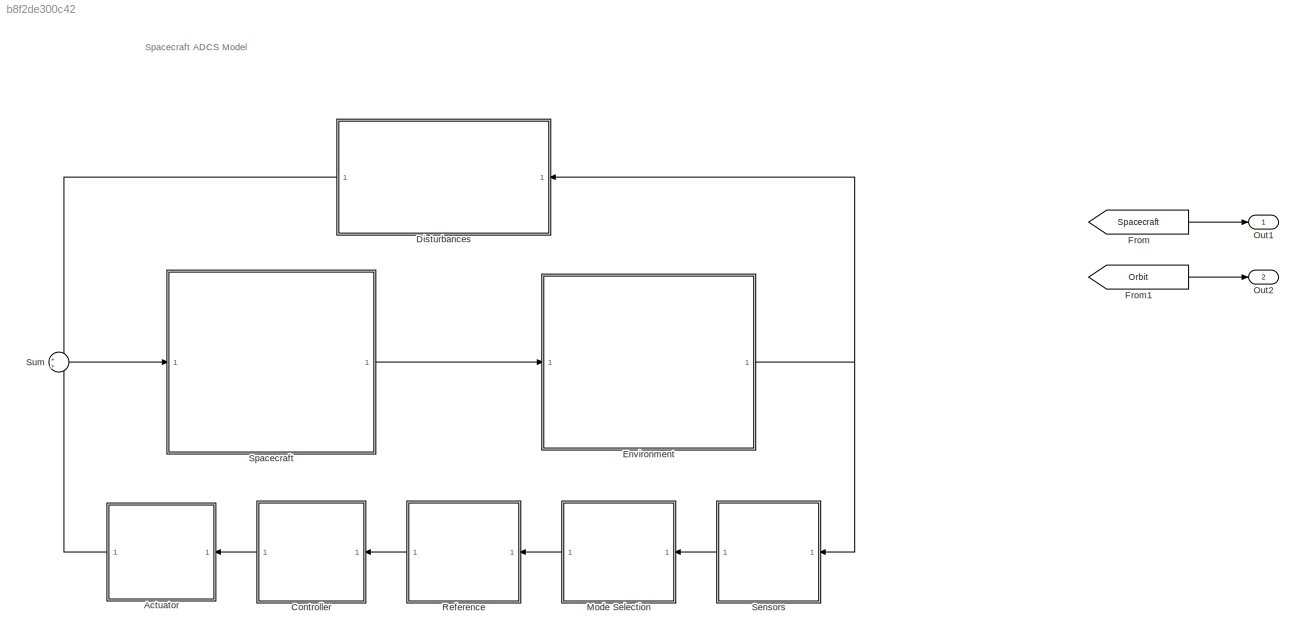
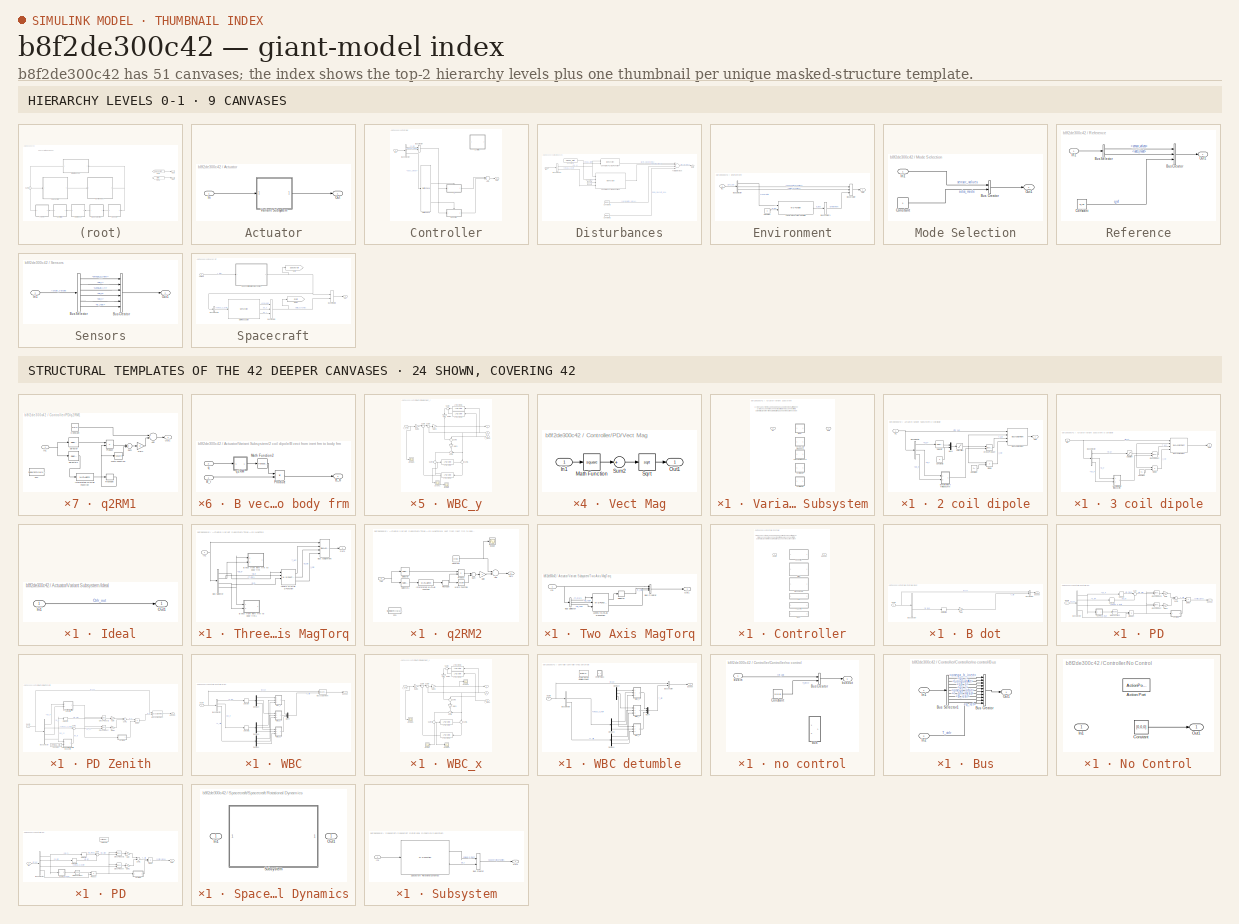
[diagram: thumbnail index - top-2 hierarchy levels (9 canvases) + 24 structural-template representatives of the remaining 42 canvases]
MODEL slx_b8f2de300c42
KIND model
CONFIG AbsTol = auto
CONFIG EnableMultiTasking = off
CONFIG FixedStep = auto
CONFIG MaxStep = auto
CONFIG MinStep = auto
CONFIG RelTol = 1e-7
CONFIG SampleTimeConstraint = Unconstrained
CONFIG Solver = ode45
CONFIG SolverName = ode45
CONFIG StartTime = 0.0
CONFIG StopTime = 1000
BLOCK [SubSystem] Actuator
  Ports = [1, 1]
  RequestExecContextInheritance = off
  Variant = off
BLOCK [Inport] Actuator/In
  IconDisplay = Port number
BLOCK [Outport] Actuator/Out
  IconDisplay = Port number
BLOCK [SubSystem] Actuator/Variant Subsystem
  Ports = [1, 1]
  RequestExecContextInheritance = off
  Variant = on
BLOCK [SubSystem] Actuator/Variant Subsystem/2 coil dipole
  Ports = [1, 1]
  RequestExecContextInheritance = off
  Variant = off
  VariantControl = ActType==5
BLOCK [SubSystem] Actuator/Variant Subsystem/2 coil dipole/B vect from inert frm to body frm
  Ports = [2, 1]
  RequestExecContextInheritance = off
  Variant = off
BLOCK [Outport] Actuator/Variant Subsystem/2 coil dipole/B vect from inert frm to body frm/B_b
  IconDisplay = Port number
BLOCK [Inport] Actuator/Variant Subsystem/2 coil dipole/B vect from inert frm to body frm/B_i
  IconDisplay = Port number
BLOCK [Math] Actuator/Variant Subsystem/2 coil dipole/B vect from inert frm to body frm/Math Function2
  Operator = transpose
  Ports = [1, 1]
BLOCK [Product] Actuator/Variant Subsystem/2 coil dipole/B vect from inert frm to body frm/Product
  InputSameDT = off
  Multiplication = Matrix(*)
  OutDataTypeStr = Inherit: Inherit via internal rule
  Ports = [2, 1]
  RndMeth = Floor
  SaturateOnIntegerOverflow = off
BLOCK [Inport] Actuator/Variant Subsystem/2 coil dipole/B vect from inert frm to body frm/q
  IconDisplay = Port number
  Port = 2
BLOCK [SubSystem] Actuator/Variant Subsystem/2 coil dipole/B vect from inert frm to body frm/q2RM
  Ports = [1, 1]
  RequestExecContextInheritance = off
  Variant = off
BLOCK [Sum] Actuator/Variant Subsystem/2 coil dipole/B vect from inert frm to body frm/q2RM/Add
  InputSameDT = off
  OutDataTypeStr = Inherit: Inherit via internal rule
  Ports = [2, 1]
  SaturateOnIntegerOverflow = off
BLOCK [Constant] Actuator/Variant Subsystem/2 coil dipole/B vect from inert frm to body frm/q2RM/Constant
  Value = eye(3)
BLOCK [Fcn] Actuator/Variant Subsystem/2 coil dipole/B vect from inert frm to body frm/q2RM/Fcn
  Commented = on
  Expr = SkewSym([u(1),u(2),u(3)])
BLOCK [Gain] Actuator/Variant Subsystem/2 coil dipole/B vect from inert frm to body frm/q2RM/Gain
  Gain = 2
  OutDataTypeStr = Inherit: Inherit via internal rule
  ParamDataTypeStr = Inherit: Inherit via internal rule
  SaturateOnIntegerOverflow = off
BLOCK [Inport] Actuator/Variant Subsystem/2 coil dipole/B vect from inert frm to body frm/q2RM/In1
  IconDisplay = Port number
BLOCK [MATLABFcn] Actuator/Variant Subsystem/2 coil dipole/B vect from inert frm to body frm/q2RM/Interpreted MATLAB Function
  MATLABFcn = SkewSym([u(1),u(2),u(3)],1)
  OutputDimensions = 9
  Ports = [1, 1]
BLOCK [Math] Actuator/Variant Subsystem/2 coil dipole/B vect from inert frm to body frm/q2RM/Math Function
  Operator = square
  Ports = [1, 1]
BLOCK [Outport] Actuator/Variant Subsystem/2 coil dipole/B vect from inert frm to body frm/q2RM/Out1
  IconDisplay = Port number
BLOCK [Product] Actuator/Variant Subsystem/2 coil dipole/B vect from inert frm to body frm/q2RM/Product
  InputSameDT = off
  OutDataTypeStr = Inherit: Inherit via internal rule
  Ports = [2, 1]
  RndMeth = Floor
  SaturateOnIntegerOverflow = off
BLOCK [Reshape] Actuator/Variant Subsystem/2 coil dipole/B vect from inert frm to body frm/q2RM/Reshape
  OutputDimensionality = Customize
  OutputDimensions = [3,3]
  Ports = [1, 1]
BLOCK [Selector] Actuator/Variant Subsystem/2 coil dipole/B vect from inert frm to body frm/q2RM/Selector
  IndexOptions = Index vector (dialog)
  Indices = [1]
  InputPortWidth = 4
  OutputSizes = 1
  Ports = [1, 1]
BLOCK [Selector] Actuator/Variant Subsystem/2 coil dipole/B vect from inert frm to body frm/q2RM/Selector1
  IndexOptions = Index vector (dialog)
  Indices = [2 3 4]
  InputPortWidth = 4
  OutputSizes = 1
  Ports = [1, 1]
BLOCK [Sum] Actuator/Variant Subsystem/2 coil dipole/B vect from inert frm to body frm/q2RM/Sum
  InputSameDT = off
  OutDataTypeStr = Inherit: Inherit via internal rule
  Ports = [2, 1]
  SaturateOnIntegerOverflow = off
BLOCK [BusAssignment] Actuator/Variant Subsystem/2 coil dipole/Bus Assignment
  AssignedSignals = m_coil,T_act,i_coil
  Ports = [4, 1]
BLOCK [BusSelector] Actuator/Variant Subsystem/2 coil dipole/Bus Selector
  OutputAsBus = off
  OutputSignals = m_b,Sensor_Values.B_i,Sensor_Values.qb_i
  Ports = [1, 3]
BLOCK [Constant] Actuator/Variant Subsystem/2 coil dipole/Constant
  Value = nA
BLOCK [Constant] Actuator/Variant Subsystem/2 coil dipole/Constant3
  Value = 0
BLOCK [Reference] Actuator/Variant Subsystem/2 coil dipole/Cross Product  REF=vrlib/Utilities/Cross Product
  Ports = [2, 1]
  SourceBlock = vrlib/Utilities/Cross Product
  SourceProductBaseCode = VR
  SourceProductName = Simulink 3D Animation
  SourceType = Cross Product
BLOCK [Product] Actuator/Variant Subsystem/2 coil dipole/Divide
  InputSameDT = off
  Inputs = */
  OutDataTypeStr = Inherit: Inherit via internal rule
  Ports = [2, 1]
  RndMeth = Floor
  SaturateOnIntegerOverflow = off
BLOCK [Inport] Actuator/Variant Subsystem/2 coil dipole/In1
  IconDisplay = Port number
BLOCK [Mux] Actuator/Variant Subsystem/2 coil dipole/Mux1
  DisplayOption = bar
  Inputs = 2
  Ports = [2, 1]
BLOCK [Outport] Actuator/Variant Subsystem/2 coil dipole/Out1
  IconDisplay = Port number
BLOCK [Saturate] Actuator/Variant Subsystem/2 coil dipole/Saturation
  InputPortMap = u0
  LowerLimit = -0.24
  Ports = [1, 1]
  UpperLimit = 0.24
BLOCK [Selector] Actuator/Variant Subsystem/2 coil dipole/Selector
  IndexOptions = Index vector (dialog)
  Indices = [1 2]
  InputPortWidth = 3
  OutputSizes = 1
  Ports = [1, 1]
BLOCK [SubSystem] Actuator/Variant Subsystem/3 coil dipole
  Ports = [1, 1]
  RequestExecContextInheritance = off
  Variant = off
  VariantControl = ActType==4
BLOCK [SubSystem] Actuator/Variant Subsystem/3 coil dipole/B vect from inert frm to body frm
  Ports = [2, 1]
  RequestExecContextInheritance = off
  Variant = off
BLOCK [Outport] Actuator/Variant Subsystem/3 coil dipole/B vect from inert frm to body frm/B_b
  IconDisplay = Port number
BLOCK [Inport] Actuator/Variant Subsystem/3 coil dipole/B vect from inert frm to body frm/B_i
  IconDisplay = Port number
BLOCK [Math] Actuator/Variant Subsystem/3 coil dipole/B vect from inert frm to body frm/Math Function2
  Operator = transpose
  Ports = [1, 1]
BLOCK [Product] Actuator/Variant Subsystem/3 coil dipole/B vect from inert frm to body frm/Product
  InputSameDT = off
  Multiplication = Matrix(*)
  OutDataTypeStr = Inherit: Inherit via internal rule
  Ports = [2, 1]
  RndMeth = Floor
  SaturateOnIntegerOverflow = off
BLOCK [Inport] Actuator/Variant Subsystem/3 coil dipole/B vect from inert frm to body frm/q
  IconDisplay = Port number
  Port = 2
BLOCK [SubSystem] Actuator/Variant Subsystem/3 coil dipole/B vect from inert frm to body frm/q2RM
  Ports = [1, 1]
  RequestExecContextInheritance = off
  Variant = off
BLOCK [Sum] Actuator/Variant Subsystem/3 coil dipole/B vect from inert frm to body frm/q2RM/Add
  InputSameDT = off
  OutDataTypeStr = Inherit: Inherit via internal rule
  Ports = [2, 1]
  SaturateOnIntegerOverflow = off
BLOCK [Constant] Actuator/Variant Subsystem/3 coil dipole/B vect from inert frm to body frm/q2RM/Constant
  Value = eye(3)
BLOCK [Fcn] Actuator/Variant Subsystem/3 coil dipole/B vect from inert frm to body frm/q2RM/Fcn
  Commented = on
  Expr = SkewSym([u(1),u(2),u(3)])
BLOCK [Gain] Actuator/Variant Subsystem/3 coil dipole/B vect from inert frm to body frm/q2RM/Gain
  Gain = 2
  OutDataTypeStr = Inherit: Inherit via internal rule
  ParamDataTypeStr = Inherit: Inherit via internal rule
  SaturateOnIntegerOverflow = off
BLOCK [Inport] Actuator/Variant Subsystem/3 coil dipole/B vect from inert frm to body frm/q2RM/In1
  IconDisplay = Port number
BLOCK [MATLABFcn] Actuator/Variant Subsystem/3 coil dipole/B vect from inert frm to body frm/q2RM/Interpreted MATLAB Function
  MATLABFcn = SkewSym([u(1),u(2),u(3)],1)
  OutputDimensions = 9
  Ports = [1, 1]
BLOCK [Math] Actuator/Variant Subsystem/3 coil dipole/B vect from inert frm to body frm/q2RM/Math Function
  Operator = square
  Ports = [1, 1]
BLOCK [Outport] Actuator/Variant Subsystem/3 coil dipole/B vect from inert frm to body frm/q2RM/Out1
  IconDisplay = Port number
BLOCK [Product] Actuator/Variant Subsystem/3 coil dipole/B vect from inert frm to body frm/q2RM/Product
  InputSameDT = off
  OutDataTypeStr = Inherit: Inherit via internal rule
  Ports = [2, 1]
  RndMeth = Floor
  SaturateOnIntegerOverflow = off
BLOCK [Reshape] Actuator/Variant Subsystem/3 coil dipole/B vect from inert frm to body frm/q2RM/Reshape
  OutputDimensionality = Customize
  OutputDimensions = [3,3]
  Ports = [1, 1]
BLOCK [Selector] Actuator/Variant Subsystem/3 coil dipole/B vect from inert frm to body frm/q2RM/Selector
  IndexOptions = Index vector (dialog)
  Indices = [1]
  InputPortWidth = 4
  OutputSizes = 1
  Ports = [1, 1]
BLOCK [Selector] Actuator/Variant Subsystem/3 coil dipole/B vect from inert frm to body frm/q2RM/Selector1
  IndexOptions = Index vector (dialog)
  Indices = [2 3 4]
  InputPortWidth = 4
  OutputSizes = 1
  Ports = [1, 1]
BLOCK [Sum] Actuator/Variant Subsystem/3 coil dipole/B vect from inert frm to body frm/q2RM/Sum
  InputSameDT = off
  OutDataTypeStr = Inherit: Inherit via internal rule
  Ports = [2, 1]
  SaturateOnIntegerOverflow = off
BLOCK [BusAssignment] Actuator/Variant Subsystem/3 coil dipole/Bus Assignment
  AssignedSignals = m_coil,T_act,i_coil
  Ports = [4, 1]
BLOCK [BusSelector] Actuator/Variant Subsystem/3 coil dipole/Bus Selector
  OutputAsBus = off
  OutputSignals = m_b,Sensor_Values.B_i,Sensor_Values.qb_i
  Ports = [1, 3]
BLOCK [Constant] Actuator/Variant Subsystem/3 coil dipole/Constant
  Value = nA
BLOCK [Reference] Actuator/Variant Subsystem/3 coil dipole/Cross Product  REF=vrlib/Utilities/Cross Product
  Ports = [2, 1]
  SourceBlock = vrlib/Utilities/Cross Product
  SourceProductBaseCode = VR
  SourceProductName = Simulink 3D Animation
  SourceType = Cross Product
BLOCK [Product] Actuator/Variant Subsystem/3 coil dipole/Divide
  InputSameDT = off
  Inputs = */
  OutDataTypeStr = Inherit: Inherit via internal rule
  Ports = [2, 1]
  RndMeth = Floor
  SaturateOnIntegerOverflow = off
BLOCK [Inport] Actuator/Variant Subsystem/3 coil dipole/In1
  IconDisplay = Port number
BLOCK [Outport] Actuator/Variant Subsystem/3 coil dipole/Out1
  IconDisplay = Port number
BLOCK [Saturate] Actuator/Variant Subsystem/3 coil dipole/Saturation
  InputPortMap = u0
  LowerLimit = -0.24
  Ports = [1, 1]
  UpperLimit = 0.24
BLOCK [SubSystem] Actuator/Variant Subsystem/Ideal
  Ports = [1, 1]
  RequestExecContextInheritance = off
  Variant = off
  VariantControl = ActType==1
BLOCK [Inport] Actuator/Variant Subsystem/Ideal/In1
  IconDisplay = Port number
BLOCK [Outport] Actuator/Variant Subsystem/Ideal/Out1
  IconDisplay = Port number
BLOCK [Inport] Actuator/Variant Subsystem/In1
  IconDisplay = Port number
BLOCK [Outport] Actuator/Variant Subsystem/Out1
  IconDisplay = Port number
BLOCK [SubSystem] Actuator/Variant Subsystem/Three Axis MagTorq
  Ports = [1, 1]
  RequestExecContextInheritance = off
  Variant = off
  VariantControl = ActType==2
BLOCK [SubSystem] Actuator/Variant Subsystem/Three Axis MagTorq/B vect from inert frm to body frm
  Ports = [2, 1]
  RequestExecContextInheritance = off
  Variant = off
BLOCK [Outport] Actuator/Variant Subsystem/Three Axis MagTorq/B vect from inert frm to body frm/B_b
  IconDisplay = Port number
BLOCK [Inport] Actuator/Variant Subsystem/Three Axis MagTorq/B vect from inert frm to body frm/B_i
  IconDisplay = Port number
  Port = 2
BLOCK [Math] Actuator/Variant Subsystem/Three Axis MagTorq/B vect from inert frm to body frm/Math Function1
  Operator = transpose
  Ports = [1, 1]
BLOCK [Product] Actuator/Variant Subsystem/Three Axis MagTorq/B vect from inert frm to body frm/Product
  InputSameDT = off
  Multiplication = Matrix(*)
  OutDataTypeStr = Inherit: Inherit via internal rule
  Ports = [2, 1]
  RndMeth = Floor
  SaturateOnIntegerOverflow = off
BLOCK [Inport] Actuator/Variant Subsystem/Three Axis MagTorq/B vect from inert frm to body frm/q
  IconDisplay = Port number
BLOCK [SubSystem] Actuator/Variant Subsystem/Three Axis MagTorq/B vect from inert frm to body frm/q2RM2
  Ports = [1, 1]
  RequestExecContextInheritance = off
  Variant = off
BLOCK [Sum] Actuator/Variant Subsystem/Three Axis MagTorq/B vect from inert frm to body frm/q2RM2/Add
  InputSameDT = off
  OutDataTypeStr = Inherit: Inherit via internal rule
  Ports = [2, 1]
  SaturateOnIntegerOverflow = off
BLOCK [Constant] Actuator/Variant Subsystem/Three Axis MagTorq/B vect from inert frm to body frm/q2RM2/Constant
  Value = eye(3)
BLOCK [Fcn] Actuator/Variant Subsystem/Three Axis MagTorq/B vect from inert frm to body frm/q2RM2/Fcn
  Commented = on
  Expr = SkewSym([u(1),u(2),u(3)])
BLOCK [Gain] Actuator/Variant Subsystem/Three Axis MagTorq/B vect from inert frm to body frm/q2RM2/Gain
  Gain = 2
  OutDataTypeStr = Inherit: Inherit via internal rule
  ParamDataTypeStr = Inherit: Inherit via internal rule
  SaturateOnIntegerOverflow = off
BLOCK [Inport] Actuator/Variant Subsystem/Three Axis MagTorq/B vect from inert frm to body frm/q2RM2/In1
  IconDisplay = Port number
BLOCK [MATLABFcn] Actuator/Variant Subsystem/Three Axis MagTorq/B vect from inert frm to body frm/q2RM2/Interpreted MATLAB Function
  MATLABFcn = SkewSym([u(1),u(2),u(3)],1)
  OutputDimensions = 9
  Ports = [1, 1]
BLOCK [Math] Actuator/Variant Subsystem/Three Axis MagTorq/B vect from inert frm to body frm/q2RM2/Math Function
  Operator = square
  Ports = [1, 1]
BLOCK [Outport] Actuator/Variant Subsystem/Three Axis MagTorq/B vect from inert frm to body frm/q2RM2/Out1
  IconDisplay = Port number
BLOCK [Product] Actuator/Variant Subsystem/Three Axis MagTorq/B vect from inert frm to body frm/q2RM2/Product
  InputSameDT = off
  OutDataTypeStr = Inherit: Inherit via internal rule
  Ports = [2, 1]
  RndMeth = Floor
  SaturateOnIntegerOverflow = off
BLOCK [Reshape] Actuator/Variant Subsystem/Three Axis MagTorq/B vect from inert frm to body frm/q2RM2/Reshape
  OutputDimensionality = Customize
  OutputDimensions = [3,3]
  Ports = [1, 1]
BLOCK [Scope] Actuator/Variant Subsystem/Three Axis MagTorq/B vect from inert frm to body frm/q2RM2/Scope
  NumInputPorts = 1
  Ports = [1]
  ScopeSpecificationString = C++SS(StrPVP('Location','[188, 365, 512, 604]'),StrPVP('Open','off'),MxPVP('AxesTitles',53,'struct(''axes1'',''%<SignalLabel>'')'),MxPVP('ScopeGraphics',56,'struct(''FigureColor'',''[0.5 0.5 0.5]'',''AxesColor'',''[0 0 0]'',''AxesTickColor'',''[1 1 1]'',''LineColors'',''[1 1 0;1 0 1;0 1 1;1 0 0;0 1 0;0 0 1]'',''LineStyles'',''-|-|-|-|-|-'',''LineWidths'',''[0.5 0.5 0.5 0.5 0.5 0.5]'',''MarkerStyle...<+224ch>
BLOCK [Selector] Actuator/Variant Subsystem/Three Axis MagTorq/B vect from inert frm to body frm/q2RM2/Selector
  IndexOptions = Index vector (dialog)
  Indices = [1]
  InputPortWidth = 4
  OutputSizes = 1
  Ports = [1, 1]
BLOCK [Selector] Actuator/Variant Subsystem/Three Axis MagTorq/B vect from inert frm to body frm/q2RM2/Selector1
  IndexOptions = Index vector (dialog)
  Indices = [2 3 4]
  InputPortWidth = 4
  OutputSizes = 1
  Ports = [1, 1]
BLOCK [Sum] Actuator/Variant Subsystem/Three Axis MagTorq/B vect from inert frm to body frm/q2RM2/Sum
  InputSameDT = off
  OutDataTypeStr = Inherit: Inherit via internal rule
  Ports = [2, 1]
  SaturateOnIntegerOverflow = off
BLOCK [SubSystem] Actuator/Variant Subsystem/Three Axis MagTorq/B vect from inert frm to body frm1
  Ports = [2, 1]
  RequestExecContextInheritance = off
  Variant = off
BLOCK [Outport] Actuator/Variant Subsystem/Three Axis MagTorq/B vect from inert frm to body frm1/B_b
  IconDisplay = Port number
BLOCK [Inport] Actuator/Variant Subsystem/Three Axis MagTorq/B vect from inert frm to body frm1/B_i
  IconDisplay = Port number
  Port = 2
BLOCK [Math] Actuator/Variant Subsystem/Three Axis MagTorq/B vect from inert frm to body frm1/Math Function1
  Operator = transpose
  Ports = [1, 1]
BLOCK [Product] Actuator/Variant Subsystem/Three Axis MagTorq/B vect from inert frm to body frm1/Product1
  InputSameDT = off
  Multiplication = Matrix(*)
  OutDataTypeStr = Inherit: Inherit via internal rule
  Ports = [2, 1]
  RndMeth = Floor
  SaturateOnIntegerOverflow = off
BLOCK [Inport] Actuator/Variant Subsystem/Three Axis MagTorq/B vect from inert frm to body frm1/q
  IconDisplay = Port number
BLOCK [SubSystem] Actuator/Variant Subsystem/Three Axis MagTorq/B vect from inert frm to body frm1/q2RM2
  Ports = [1, 1]
  RequestExecContextInheritance = off
  Variant = off
BLOCK [Sum] Actuator/Variant Subsystem/Three Axis MagTorq/B vect from inert frm to body frm1/q2RM2/Add
  InputSameDT = off
  OutDataTypeStr = Inherit: Inherit via internal rule
  Ports = [2, 1]
  SaturateOnIntegerOverflow = off
BLOCK [Constant] Actuator/Variant Subsystem/Three Axis MagTorq/B vect from inert frm to body frm1/q2RM2/Constant
  Value = eye(3)
BLOCK [Fcn] Actuator/Variant Subsystem/Three Axis MagTorq/B vect from inert frm to body frm1/q2RM2/Fcn
  Commented = on
  Expr = SkewSym([u(1),u(2),u(3)])
BLOCK [Gain] Actuator/Variant Subsystem/Three Axis MagTorq/B vect from inert frm to body frm1/q2RM2/Gain
  OutDataTypeStr = Inherit: Inherit via internal rule
  ParamDataTypeStr = Inherit: Inherit via internal rule
  SaturateOnIntegerOverflow = off
BLOCK [Inport] Actuator/Variant Subsystem/Three Axis MagTorq/B vect from inert frm to body frm1/q2RM2/In1
  IconDisplay = Port number
BLOCK [MATLABFcn] Actuator/Variant Subsystem/Three Axis MagTorq/B vect from inert frm to body frm1/q2RM2/Interpreted MATLAB Function
  MATLABFcn = SkewSym([u(1),u(2),u(3)],1)
  OutputDimensions = 9
  Ports = [1, 1]
BLOCK [Math] Actuator/Variant Subsystem/Three Axis MagTorq/B vect from inert frm to body frm1/q2RM2/Math Function
  Operator = square
  Ports = [1, 1]
BLOCK [Outport] Actuator/Variant Subsystem/Three Axis MagTorq/B vect from inert frm to body frm1/q2RM2/Out1
  IconDisplay = Port number
BLOCK [Product] Actuator/Variant Subsystem/Three Axis MagTorq/B vect from inert frm to body frm1/q2RM2/Product
  InputSameDT = off
  OutDataTypeStr = Inherit: Inherit via internal rule
  Ports = [2, 1]
  RndMeth = Floor
  SaturateOnIntegerOverflow = off
BLOCK [Reshape] Actuator/Variant Subsystem/Three Axis MagTorq/B vect from inert frm to body frm1/q2RM2/Reshape
  OutputDimensionality = Customize
  OutputDimensions = [3,3]
  Ports = [1, 1]
BLOCK [Selector] Actuator/Variant Subsystem/Three Axis MagTorq/B vect from inert frm to body frm1/q2RM2/Selector
  IndexOptions = Index vector (dialog)
  Indices = [1]
  InputPortWidth = 4
  OutputSizes = 1
  Ports = [1, 1]
BLOCK [Selector] Actuator/Variant Subsystem/Three Axis MagTorq/B vect from inert frm to body frm1/q2RM2/Selector1
  IndexOptions = Index vector (dialog)
  Indices = [2 3 4]
  InputPortWidth = 4
  OutputSizes = 1
  Ports = [1, 1]
BLOCK [Sum] Actuator/Variant Subsystem/Three Axis MagTorq/B vect from inert frm to body frm1/q2RM2/Sum
  InputSameDT = off
  OutDataTypeStr = Inherit: Inherit via internal rule
  Ports = [2, 1]
  SaturateOnIntegerOverflow = off
BLOCK [BusAssignment] Actuator/Variant Subsystem/Three Axis MagTorq/Bus Assignment
  AssignedSignals = T_act,m_coil,i_coil
  Ports = [4, 1]
BLOCK [BusSelector] Actuator/Variant Subsystem/Three Axis MagTorq/Bus Selector
  OutputAsBus = off
  OutputSignals = T_ctrlr,Actual_Values.B_i,Sensor_Values.B_i,Sensor_Values.qb_i
  Ports = [1, 4]
BLOCK [Inport] Actuator/Variant Subsystem/Three Axis MagTorq/In1
  IconDisplay = Port number
BLOCK [M-S-Function] Actuator/Variant Subsystem/Three Axis MagTorq/Level-2 MATLAB S-Function
  FunctionName = Magtorq2Sfun
  Parameters = nAx, nAy, nAz
  Ports = [4, 3]
BLOCK [Outport] Actuator/Variant Subsystem/Three Axis MagTorq/Out1
  IconDisplay = Port number
BLOCK [SubSystem] Actuator/Variant Subsystem/Two Axis MagTorq
  Ports = [1, 1]
  RequestExecContextInheritance = off
  Variant = off
  VariantControl = ActType==3
BLOCK [BusCreator] Actuator/Variant Subsystem/Two Axis MagTorq/Bus Creator
  DisplayOption = bar
  InheritFromInputs = on
  Inputs = 4
  Ports = [4, 1]
BLOCK [BusSelector] Actuator/Variant Subsystem/Two Axis MagTorq/Bus Selector
  OutputAsBus = off
  OutputSignals = T_ctrlr,ref_out.Mode_select_out.Sensor_out.Enviro_out.B_real,ref_out.Mode_select_out.Sensor_out.Sensor_values.B_real
  Ports = [1, 3]
BLOCK [Inport] Actuator/Variant Subsystem/Two Axis MagTorq/In1
  IconDisplay = Port number
BLOCK [M-S-Function] Actuator/Variant Subsystem/Two Axis MagTorq/Level-2 MATLAB S-Function
  FunctionName = MagtorqSfun
  Ports = [3, 2]
BLOCK [Outport] Actuator/Variant Subsystem/Two Axis MagTorq/Out1
  IconDisplay = Port number
BLOCK [Selector] Actuator/Variant Subsystem/Two Axis MagTorq/Selector
  IndexOptions = Index vector (dialog)
  Indices = [1 2]
  InputPortWidth = 3
  OutputSizes = 1
  Ports = [1, 1]
BLOCK [SubSystem] Controller
  Ports = [1, 1]
  RequestExecContextInheritance = off
  Variant = off
BLOCK [Sum] Controller/Add
  InputSameDT = off
  OutDataTypeStr = Inherit: Inherit via internal rule
  Ports = [2, 1]
  SaturateOnIntegerOverflow = off
BLOCK [BusCreator] Controller/Bus Creator
  DisplayOption = bar
  InheritFromInputs = on
  Inputs = 2
  Ports = [2, 1]
BLOCK [BusSelector] Controller/Bus Selector
  OutputAsBus = off
  OutputSignals = q_ref,sensor_values,adcs_mode
  Ports = [1, 3]
BLOCK [SubSystem] Controller/Controller
  Commented = on
  Ports = [1, 1]
  RequestExecContextInheritance = off
  Variant = on
BLOCK [SubSystem] Controller/Controller/B dot
  Ports = [1, 1]
  RequestExecContextInheritance = off
  Variant = off
  VariantControl = CtrlType==4
BLOCK [BusCreator] Controller/Controller/B dot/Bus Creator
  DisplayOption = bar
  InheritFromInputs = on
  Inputs = 2
  Ports = [2, 1]
BLOCK [BusSelector] Controller/Controller/B dot/Bus Selector
  OutputAsBus = off
  OutputSignals = signal1.Sensor_out.Sensor_Values.qb_i,q_ref,signal1.Sensor_out.Sensor_Values.omega_b_inert,signal1.Sensor_out.Sensor_Values.B_real,signal1.Sensor_out.Actual_Values.Dyn_out.qb_o
  Ports = [1, 5]
BLOCK [Derivative] Controller/Controller/B dot/Derivative
BLOCK [Gain] Controller/Controller/B dot/Gain
  Gain = -k_bd
  OutDataTypeStr = Inherit: Inherit via internal rule
  ParamDataTypeStr = Inherit: Inherit via internal rule
  SaturateOnIntegerOverflow = off
BLOCK [Inport] Controller/Controller/B dot/bus in
  IconDisplay = Port number
BLOCK [Outport] Controller/Controller/B dot/bus out
  IconDisplay = Port number
BLOCK [SubSystem] Controller/Controller/PD
  Ports = [1, 1]
  RequestExecContextInheritance = off
  Variant = off
  VariantControl = CtrlType==2
BLOCK [SubSystem] Controller/Controller/PD Zenith
  Ports = [1, 1]
  RequestExecContextInheritance = off
  Variant = off
  VariantControl = CtrlType==3
BLOCK [SubSystem] Controller/Controller/PD Zenith/B vect from inert frm to body frm
  Ports = [2, 1]
  RequestExecContextInheritance = off
  Variant = off
BLOCK [Inport] Controller/Controller/PD Zenith/B vect from inert frm to body frm/In1
  IconDisplay = Port number
BLOCK [Inport] Controller/Controller/PD Zenith/B vect from inert frm to body frm/In2
  IconDisplay = Port number
  Port = 2
BLOCK [Math] Controller/Controller/PD Zenith/B vect from inert frm to body frm/Math Function1
  Operator = transpose
  Ports = [1, 1]
BLOCK [Outport] Controller/Controller/PD Zenith/B vect from inert frm to body frm/Out1
  IconDisplay = Port number
BLOCK [Product] Controller/Controller/PD Zenith/B vect from inert frm to body frm/Product1
  InputSameDT = off
  Multiplication = Matrix(*)
  OutDataTypeStr = Inherit: Inherit via internal rule
  Ports = [2, 1]
  RndMeth = Floor
  SaturateOnIntegerOverflow = off
BLOCK [SubSystem] Controller/Controller/PD Zenith/B vect from inert frm to body frm/q2RM2
  Ports = [1, 1]
  RequestExecContextInheritance = off
  Variant = off
BLOCK [Sum] Controller/Controller/PD Zenith/B vect from inert frm to body frm/q2RM2/Add
  InputSameDT = off
  OutDataTypeStr = Inherit: Inherit via internal rule
  Ports = [2, 1]
  SaturateOnIntegerOverflow = off
BLOCK [Constant] Controller/Controller/PD Zenith/B vect from inert frm to body frm/q2RM2/Constant
  Value = eye(3)
BLOCK [Fcn] Controller/Controller/PD Zenith/B vect from inert frm to body frm/q2RM2/Fcn
  Commented = on
  Expr = SkewSym([u(1),u(2),u(3)])
BLOCK [Gain] Controller/Controller/PD Zenith/B vect from inert frm to body frm/q2RM2/Gain
  Gain = 2
  OutDataTypeStr = Inherit: Inherit via internal rule
  ParamDataTypeStr = Inherit: Inherit via internal rule
  SaturateOnIntegerOverflow = off
BLOCK [Inport] Controller/Controller/PD Zenith/B vect from inert frm to body frm/q2RM2/In1
  IconDisplay = Port number
BLOCK [MATLABFcn] Controller/Controller/PD Zenith/B vect from inert frm to body frm/q2RM2/Interpreted MATLAB Function
  MATLABFcn = SkewSym([u(1),u(2),u(3)],1)
  OutputDimensions = 9
  Ports = [1, 1]
BLOCK [Math] Controller/Controller/PD Zenith/B vect from inert frm to body frm/q2RM2/Math Function
  Operator = square
  Ports = [1, 1]
BLOCK [Outport] Controller/Controller/PD Zenith/B vect from inert frm to body frm/q2RM2/Out1
  IconDisplay = Port number
BLOCK [Product] Controller/Controller/PD Zenith/B vect from inert frm to body frm/q2RM2/Product
  InputSameDT = off
  OutDataTypeStr = Inherit: Inherit via internal rule
  Ports = [2, 1]
  RndMeth = Floor
  SaturateOnIntegerOverflow = off
BLOCK [Reshape] Controller/Controller/PD Zenith/B vect from inert frm to body frm/q2RM2/Reshape
  OutputDimensionality = Customize
  OutputDimensions = [3,3]
  Ports = [1, 1]
BLOCK [Selector] Controller/Controller/PD Zenith/B vect from inert frm to body frm/q2RM2/Selector
  IndexOptions = Index vector (dialog)
  Indices = [1]
  InputPortWidth = 4
  OutputSizes = 1
  Ports = [1, 1]
BLOCK [Selector] Controller/Controller/PD Zenith/B vect from inert frm to body frm/q2RM2/Selector1
  IndexOptions = Index vector (dialog)
  Indices = [2 3 4]
  InputPortWidth = 4
  OutputSizes = 1
  Ports = [1, 1]
BLOCK [Sum] Controller/Controller/PD Zenith/B vect from inert frm to body frm/q2RM2/Sum
  InputSameDT = off
  OutDataTypeStr = Inherit: Inherit via internal rule
  Ports = [2, 1]
  SaturateOnIntegerOverflow = off
BLOCK [BusAssignment] Controller/Controller/PD Zenith/Bus Assignment
  AssignedSignals = m_b
  Ports = [2, 1]
BLOCK [BusSelector] Controller/Controller/PD Zenith/Bus Selector
  OutputAsBus = off
  OutputSignals = Sensor_Values.qb_i,Sensor_Values.omega_b_inert,Sensor_Values.B_i,Actual_Values.qb_o
  Ports = [1, 4]
BLOCK [Constant] Controller/Controller/PD Zenith/Constant
  Value = 1*omega_orbit
BLOCK [Reference] Controller/Controller/PD Zenith/Cross Product  REF=vrlib/Utilities/Cross Product
  Ports = [2, 1]
  SourceBlock = vrlib/Utilities/Cross Product
  SourceProductBaseCode = VR
  SourceProductName = Simulink 3D Animation
  SourceType = Cross Product
BLOCK [Reference] Controller/Controller/PD Zenith/Cross Product1  REF=vrlib/Utilities/Cross Product
  Ports = [2, 1]
  SourceBlock = vrlib/Utilities/Cross Product
  SourceProductBaseCode = VR
  SourceProductName = Simulink 3D Animation
  SourceType = Cross Product
BLOCK [Product] Controller/Controller/PD Zenith/Divide
  InputSameDT = off
  Inputs = */
  OutDataTypeStr = Inherit: Inherit via internal rule
  Ports = [2, 1]
  RndMeth = Floor
  SaturateOnIntegerOverflow = off
BLOCK [Gain] Controller/Controller/PD Zenith/Gain
  Gain = -kp
  OutDataTypeStr = Inherit: Inherit via internal rule
  ParamDataTypeStr = Inherit: Inherit via internal rule
  SaturateOnIntegerOverflow = off
BLOCK [Gain] Controller/Controller/PD Zenith/Gain1
  Gain = -kd
  OutDataTypeStr = Inherit: Inherit via internal rule
  ParamDataTypeStr = Inherit: Inherit via internal rule
  SaturateOnIntegerOverflow = off
BLOCK [Selector] Controller/Controller/PD Zenith/Selector
  IndexOptions = Index vector (dialog)
  Indices = [2 3 4]
  InputPortWidth = 4
  OutputSizes = 1
  Ports = [1, 1]
BLOCK [Sum] Controller/Controller/PD Zenith/Sum1
  InputSameDT = off
  OutDataTypeStr = Inherit: Inherit via internal rule
  Ports = [2, 1]
  SaturateOnIntegerOverflow = off
BLOCK [Sum] Controller/Controller/PD Zenith/Sum2
  IconShape = round
  InputSameDT = off
  Inputs = |+-
  OutDataTypeStr = Inherit: Inherit via internal rule
  Ports = [2, 1]
  SaturateOnIntegerOverflow = off
BLOCK [SubSystem] Controller/Controller/PD Zenith/Vect Mag
  Ports = [1, 1]
  RequestExecContextInheritance = off
  Variant = off
BLOCK [Inport] Controller/Controller/PD Zenith/Vect Mag/In1
  IconDisplay = Port number
BLOCK [Math] Controller/Controller/PD Zenith/Vect Mag/Math Function
  Operator = square
  Ports = [1, 1]
BLOCK [Outport] Controller/Controller/PD Zenith/Vect Mag/Out1
  IconDisplay = Port number
BLOCK [Sqrt] Controller/Controller/PD Zenith/Vect Mag/Sqrt
BLOCK [Sum] Controller/Controller/PD Zenith/Vect Mag/Sum2
  IconShape = round
  InputSameDT = off
  Inputs = +
  OutDataTypeStr = Inherit: Inherit via internal rule
  Ports = [1, 1]
  SaturateOnIntegerOverflow = off
BLOCK [Inport] Controller/Controller/PD Zenith/bus in
  IconDisplay = Port number
BLOCK [Outport] Controller/Controller/PD Zenith/bus out
  IconDisplay = Port number
BLOCK [SubSystem] Controller/Controller/PD Zenith/omega orb from orb frm to body frm
  Ports = [2, 1]
  RequestExecContextInheritance = off
  Variant = off
BLOCK [Inport] Controller/Controller/PD Zenith/omega orb from orb frm to body frm/In1
  IconDisplay = Port number
BLOCK [Inport] Controller/Controller/PD Zenith/omega orb from orb frm to body frm/In2
  IconDisplay = Port number
  Port = 2
BLOCK [Math] Controller/Controller/PD Zenith/omega orb from orb frm to body frm/Math Function2
  Operator = transpose
  Ports = [1, 1]
BLOCK [Outport] Controller/Controller/PD Zenith/omega orb from orb frm to body frm/Out1
  IconDisplay = Port number
BLOCK [Product] Controller/Controller/PD Zenith/omega orb from orb frm to body frm/Product
  InputSameDT = off
  Multiplication = Matrix(*)
  OutDataTypeStr = Inherit: Inherit via internal rule
  Ports = [2, 1]
  RndMeth = Floor
  SaturateOnIntegerOverflow = off
BLOCK [SubSystem] Controller/Controller/PD Zenith/omega orb from orb frm to body frm/q2RM1
  Ports = [1, 1]
  RequestExecContextInheritance = off
  Variant = off
BLOCK [Sum] Controller/Controller/PD Zenith/omega orb from orb frm to body frm/q2RM1/Add
  InputSameDT = off
  OutDataTypeStr = Inherit: Inherit via internal rule
  Ports = [2, 1]
  SaturateOnIntegerOverflow = off
BLOCK [Constant] Controller/Controller/PD Zenith/omega orb from orb frm to body frm/q2RM1/Constant
  Value = eye(3)
BLOCK [Fcn] Controller/Controller/PD Zenith/omega orb from orb frm to body frm/q2RM1/Fcn
  Commented = on
  Expr = SkewSym([u(1),u(2),u(3)])
BLOCK [Gain] Controller/Controller/PD Zenith/omega orb from orb frm to body frm/q2RM1/Gain
  Gain = 2
  OutDataTypeStr = Inherit: Inherit via internal rule
  ParamDataTypeStr = Inherit: Inherit via internal rule
  SaturateOnIntegerOverflow = off
BLOCK [Inport] Controller/Controller/PD Zenith/omega orb from orb frm to body frm/q2RM1/In1
  IconDisplay = Port number
BLOCK [MATLABFcn] Controller/Controller/PD Zenith/omega orb from orb frm to body frm/q2RM1/Interpreted MATLAB Function
  MATLABFcn = SkewSym([u(1),u(2),u(3)],1)
  OutputDimensions = 9
  Ports = [1, 1]
BLOCK [Math] Controller/Controller/PD Zenith/omega orb from orb frm to body frm/q2RM1/Math Function
  Operator = square
  Ports = [1, 1]
BLOCK [Outport] Controller/Controller/PD Zenith/omega orb from orb frm to body frm/q2RM1/Out1
  IconDisplay = Port number
BLOCK [Product] Controller/Controller/PD Zenith/omega orb from orb frm to body frm/q2RM1/Product
  InputSameDT = off
  OutDataTypeStr = Inherit: Inherit via internal rule
  Ports = [2, 1]
  RndMeth = Floor
  SaturateOnIntegerOverflow = off
BLOCK [Reshape] Controller/Controller/PD Zenith/omega orb from orb frm to body frm/q2RM1/Reshape
  OutputDimensionality = Customize
  OutputDimensions = [3,3]
  Ports = [1, 1]
BLOCK [Selector] Controller/Controller/PD Zenith/omega orb from orb frm to body frm/q2RM1/Selector
  IndexOptions = Index vector (dialog)
  Indices = [1]
  InputPortWidth = 4
  OutputSizes = 1
  Ports = [1, 1]
BLOCK [Selector] Controller/Controller/PD Zenith/omega orb from orb frm to body frm/q2RM1/Selector1
  IndexOptions = Index vector (dialog)
  Indices = [2 3 4]
  InputPortWidth = 4
  OutputSizes = 1
  Ports = [1, 1]
BLOCK [Sum] Controller/Controller/PD Zenith/omega orb from orb frm to body frm/q2RM1/Sum
  InputSameDT = off
  OutDataTypeStr = Inherit: Inherit via internal rule
  Ports = [2, 1]
  SaturateOnIntegerOverflow = off
BLOCK [BusSelector] Controller/Controller/PD/Bus Selector
  OutputAsBus = off
  OutputSignals = sensor_values.qb_i,q_ref,sensor_values.omega_b_inert,sensor_values.B_real
  Ports = [1, 4]
BLOCK [Reference] Controller/Controller/PD/Cross Product  REF=vrlib/Utilities/Cross Product
  Ports = [2, 1]
  SourceBlock = vrlib/Utilities/Cross Product
  SourceProductBaseCode = VR
  SourceProductName = Simulink 3D Animation
  SourceType = Cross Product
BLOCK [Reference] Controller/Controller/PD/Cross Product1  REF=vrlib/Utilities/Cross Product
  Ports = [2, 1]
  SourceBlock = vrlib/Utilities/Cross Product
  SourceProductBaseCode = VR
  SourceProductName = Simulink 3D Animation
  SourceType = Cross Product
BLOCK [Product] Controller/Controller/PD/Divide
  InputSameDT = off
  Inputs = */
  OutDataTypeStr = Inherit: Inherit via internal rule
  Ports = [2, 1]
  RndMeth = Floor
  SaturateOnIntegerOverflow = off
BLOCK [Gain] Controller/Controller/PD/Gain
  Gain = -kp
  OutDataTypeStr = Inherit: Inherit via internal rule
  ParamDataTypeStr = Inherit: Inherit via internal rule
  SaturateOnIntegerOverflow = off
BLOCK [Gain] Controller/Controller/PD/Gain1
  Gain = -kd
  OutDataTypeStr = Inherit: Inherit via internal rule
  ParamDataTypeStr = Inherit: Inherit via internal rule
  SaturateOnIntegerOverflow = off
BLOCK [Math] Controller/Controller/PD/Math Function2
  Operator = transpose
  Ports = [1, 1]
BLOCK [Product] Controller/Controller/PD/Product
  InputSameDT = off
  Multiplication = Matrix(*)
  OutDataTypeStr = Inherit: Inherit via internal rule
  Ports = [2, 1]
  RndMeth = Floor
  SaturateOnIntegerOverflow = off
BLOCK [Selector] Controller/Controller/PD/Selector
  IndexOptions = Index vector (dialog)
  Indices = [2 3 4]
  InputPortWidth = 4
  OutputSizes = 1
  Ports = [1, 1]
BLOCK [Selector] Controller/Controller/PD/Selector1
  IndexOptions = Index vector (dialog)
  Indices = [2 3 4]
  InputPortWidth = 4
  OutputSizes = 1
  Ports = [1, 1]
BLOCK [Sum] Controller/Controller/PD/Sum
  IconShape = round
  InputSameDT = off
  Inputs = |+-
  OutDataTypeStr = Inherit: Inherit via internal rule
  Ports = [2, 1]
  SaturateOnIntegerOverflow = off
BLOCK [Sum] Controller/Controller/PD/Sum1
  InputSameDT = off
  OutDataTypeStr = Inherit: Inherit via internal rule
  Ports = [2, 1]
  SaturateOnIntegerOverflow = off
BLOCK [SubSystem] Controller/Controller/PD/Vect Mag
  Ports = [1, 1]
  RequestExecContextInheritance = off
  Variant = off
BLOCK [Inport] Controller/Controller/PD/Vect Mag/In1
  IconDisplay = Port number
BLOCK [Math] Controller/Controller/PD/Vect Mag/Math Function
  Operator = square
  Ports = [1, 1]
BLOCK [Outport] Controller/Controller/PD/Vect Mag/Out1
  IconDisplay = Port number
BLOCK [Sqrt] Controller/Controller/PD/Vect Mag/Sqrt
BLOCK [Sum] Controller/Controller/PD/Vect Mag/Sum2
  IconShape = round
  InputSameDT = off
  Inputs = +
  OutDataTypeStr = Inherit: Inherit via internal rule
  Ports = [1, 1]
  SaturateOnIntegerOverflow = off
BLOCK [Inport] Controller/Controller/PD/bus in
  IconDisplay = Port number
BLOCK [Outport] Controller/Controller/PD/bus out
  IconDisplay = Port number
BLOCK [SubSystem] Controller/Controller/PD/q2RM1
  Ports = [1, 1]
  RequestExecContextInheritance = off
  Variant = off
BLOCK [Sum] Controller/Controller/PD/q2RM1/Add
  InputSameDT = off
  OutDataTypeStr = Inherit: Inherit via internal rule
  Ports = [2, 1]
  SaturateOnIntegerOverflow = off
BLOCK [Constant] Controller/Controller/PD/q2RM1/Constant
  Value = eye(3)
BLOCK [Fcn] Controller/Controller/PD/q2RM1/Fcn
  Commented = on
  Expr = SkewSym([u(1),u(2),u(3)])
BLOCK [Gain] Controller/Controller/PD/q2RM1/Gain
  Gain = 2
  OutDataTypeStr = Inherit: Inherit via internal rule
  ParamDataTypeStr = Inherit: Inherit via internal rule
  SaturateOnIntegerOverflow = off
BLOCK [Inport] Controller/Controller/PD/q2RM1/In1
  IconDisplay = Port number
BLOCK [MATLABFcn] Controller/Controller/PD/q2RM1/Interpreted MATLAB Function
  MATLABFcn = SkewSym([u(1),u(2),u(3)],1)
  OutputDimensions = 9
  Ports = [1, 1]
BLOCK [Math] Controller/Controller/PD/q2RM1/Math Function
  Operator = square
  Ports = [1, 1]
BLOCK [Outport] Controller/Controller/PD/q2RM1/Out1
  IconDisplay = Port number
BLOCK [Product] Controller/Controller/PD/q2RM1/Product
  InputSameDT = off
  OutDataTypeStr = Inherit: Inherit via internal rule
  Ports = [2, 1]
  RndMeth = Floor
  SaturateOnIntegerOverflow = off
BLOCK [Reshape] Controller/Controller/PD/q2RM1/Reshape
  OutputDimensionality = Customize
  OutputDimensions = [3,3]
  Ports = [1, 1]
BLOCK [Selector] Controller/Controller/PD/q2RM1/Selector
  IndexOptions = Index vector (dialog)
  Indices = [1]
  InputPortWidth = 4
  OutputSizes = 1
  Ports = [1, 1]
BLOCK [Selector] Controller/Controller/PD/q2RM1/Selector1
  IndexOptions = Index vector (dialog)
  Indices = [2 3 4]
  InputPortWidth = 4
  OutputSizes = 1
  Ports = [1, 1]
BLOCK [Sum] Controller/Controller/PD/q2RM1/Sum
  InputSameDT = off
  OutDataTypeStr = Inherit: Inherit via internal rule
  Ports = [2, 1]
  SaturateOnIntegerOverflow = off
BLOCK [SubSystem] Controller/Controller/WBC
  Ports = [1, 1]
  RequestExecContextInheritance = off
  Variant = off
  VariantControl = CtrlType==1
BLOCK [SubSystem] Controller/Controller/WBC detumble
  Ports = [1, 1]
  RequestExecContextInheritance = off
  Variant = off
  VariantControl = CtrlType==5
BLOCK [BusCreator] Controller/Controller/WBC detumble/Bus Creator
  DisplayOption = bar
  InheritFromInputs = on
  Inputs = 2
  Ports = [2, 1]
BLOCK [BusSelector] Controller/Controller/WBC detumble/Bus Selector
  OutputAsBus = off
  OutputSignals = q_ref,signal1.Sensor_out.Sensor_values.omega_b_inert,signal1.Sensor_out.Enviro_out.Dyn_out.T_ctrlr
  Ports = [1, 3]
BLOCK [Demux] Controller/Controller/WBC detumble/Demux1
  DisplayOption = bar
  Outputs = 3
  Ports = [1, 3]
BLOCK [Demux] Controller/Controller/WBC detumble/Demux3
  DisplayOption = bar
  Outputs = 3
  Ports = [1, 3]
BLOCK [Demux] Controller/Controller/WBC detumble/Demux4
  DisplayOption = bar
  Outputs = 3
  Ports = [1, 3]
BLOCK [Mux] Controller/Controller/WBC detumble/Mux4
  DisplayOption = bar
  Inputs = 3
  Ports = [3, 1]
BLOCK [Reference] Controller/Controller/WBC detumble/Quaternions to Rotation Angles  REF=sharedtransform/Quaternions to Rotation Angles
  AttributesFormatString = Rotation Order: %<rotationOrder>
  Commented = on
  Ports = [1, 1]
  SourceBlock = sharedtransform/Quaternions to Rotation Angles
  SourceProductBaseCode = AE
  SourceProductName = Aerospace Blockset
  SourceType = Quat2Ang
BLOCK [SubSystem] Controller/Controller/WBC detumble/Vector Mag1
  Commented = on
  Ports = [1, 1]
  RequestExecContextInheritance = off
  Variant = off
BLOCK [Math] Controller/Controller/WBC detumble/Vector Mag1/Math Function2
  Operator = square
  Ports = [1, 1]
BLOCK [Sqrt] Controller/Controller/WBC detumble/Vector Mag1/Sqrt2
BLOCK [Sum] Controller/Controller/WBC detumble/Vector Mag1/Sum2
  IconShape = round
  InputSameDT = off
  Inputs = +
  OutDataTypeStr = Inherit: Inherit via internal rule
  Ports = [1, 1]
  SaturateOnIntegerOverflow = off
BLOCK [Outport] Controller/Controller/WBC detumble/Vector Mag1/m
  IconDisplay = Port number
BLOCK [Inport] Controller/Controller/WBC detumble/Vector Mag1/v
  IconDisplay = Port number
BLOCK [SubSystem] Controller/Controller/WBC detumble/WBC_x
  Ports = [3, 1]
  RequestExecContextInheritance = off
  Variant = off
BLOCK [Gain] Controller/Controller/WBC detumble/WBC_x/Gain1
  Gain = 1/k
  OutDataTypeStr = Inherit: Inherit via internal rule
  ParamDataTypeStr = Inherit: Inherit via internal rule
  SaturateOnIntegerOverflow = off
BLOCK [Gain] Controller/Controller/WBC detumble/WBC_x/Gain2
  Gain = distrej
  OutDataTypeStr = Inherit: Inherit via internal rule
  ParamDataTypeStr = Inherit: Inherit via internal rule
  SaturateOnIntegerOverflow = off
BLOCK [Gain] Controller/Controller/WBC detumble/WBC_x/Gain5
  Gain = 0.5
  OutDataTypeStr = Inherit: Inherit via internal rule
  ParamDataTypeStr = Inherit: Inherit via internal rule
  SaturateOnIntegerOverflow = off
BLOCK [Gain] Controller/Controller/WBC detumble/WBC_x/Gain6
  Gain = k
  OutDataTypeStr = Inherit: Inherit via internal rule
  ParamDataTypeStr = Inherit: Inherit via internal rule
  SaturateOnIntegerOverflow = off
BLOCK [Reference] Controller/Controller/WBC detumble/WBC_x/LTI System  REF=cstblocks/LTI System
  Ports = [1, 1]
  SourceBlock = cstblocks/LTI System
  SourceProductBaseCode = CT
  SourceProductName = Control System Toolbox
  SourceType = LTI Block
BLOCK [Reference] Controller/Controller/WBC detumble/WBC_x/LTI System1  REF=cstblocks/LTI System
  Ports = [1, 1]
  SourceBlock = cstblocks/LTI System
  SourceProductBaseCode = CT
  SourceProductName = Control System Toolbox
  SourceType = LTI Block
BLOCK [Reference] Controller/Controller/WBC detumble/WBC_x/LTI System2  REF=cstblocks/LTI System
  Ports = [1, 1]
  SourceBlock = cstblocks/LTI System
  SourceProductBaseCode = CT
  SourceProductName = Control System Toolbox
  SourceType = LTI Block
BLOCK [Reference] Controller/Controller/WBC detumble/WBC_x/LTI System3  REF=cstblocks/LTI System
  Ports = [1, 1]
  SourceBlock = cstblocks/LTI System
  SourceProductBaseCode = CT
  SourceProductName = Control System Toolbox
  SourceType = LTI Block
BLOCK [Scope] Controller/Controller/WBC detumble/WBC_x/Scope
  NumInputPorts = 1
  Ports = [1]
  ScopeSpecificationString = C++SS(StrPVP('Location','[188, 365, 512, 604]'),StrPVP('Open','off'),MxPVP('AxesTitles',53,'struct(''axes1'',''%<SignalLabel>'')'),StrPVP('ShowLegends','off'),StrPVP('LimitDataPoints','on'),StrPVP('DataFormat','Array'),StrPVP('Decimation','1'),StrPVP('BlockParamSampleInput','off'))  <repeated x13 — deduplicated; at blocks: Scope, Scope1, Scope2>
BLOCK [Scope] Controller/Controller/WBC detumble/WBC_x/Scope1
  NumInputPorts = 1
  Ports = [1]
BLOCK [Scope] Controller/Controller/WBC detumble/WBC_x/Scope2
  NumInputPorts = 1
  Ports = [1]
BLOCK [Sum] Controller/Controller/WBC detumble/WBC_x/Sum1
  IconShape = round
  InputSameDT = off
  Inputs = ++|
  OutDataTypeStr = Inherit: Inherit via internal rule
  Ports = [2, 1]
  SaturateOnIntegerOverflow = off
BLOCK [Sum] Controller/Controller/WBC detumble/WBC_x/Sum2
  IconShape = round
  InputSameDT = off
  Inputs = |++
  OutDataTypeStr = Inherit: Inherit via internal rule
  Ports = [2, 1]
  SaturateOnIntegerOverflow = off
BLOCK [Sum] Controller/Controller/WBC detumble/WBC_x/Sum3
  IconShape = round
  InputSameDT = off
  Inputs = ++|
  OutDataTypeStr = Inherit: Inherit via internal rule
  Ports = [2, 1]
  SaturateOnIntegerOverflow = off
BLOCK [Sum] Controller/Controller/WBC detumble/WBC_x/Sum4
  IconShape = round
  InputSameDT = off
  Inputs = +|-
  OutDataTypeStr = Inherit: Inherit via internal rule
  Ports = [2, 1]
  SaturateOnIntegerOverflow = off
BLOCK [Sum] Controller/Controller/WBC detumble/WBC_x/Sum5
  IconShape = round
  InputSameDT = off
  Inputs = -+|
  OutDataTypeStr = Inherit: Inherit via internal rule
  Ports = [2, 1]
  SaturateOnIntegerOverflow = off
BLOCK [Sum] Controller/Controller/WBC detumble/WBC_x/Sum6
  IconShape = round
  InputSameDT = off
  Inputs = |++
  OutDataTypeStr = Inherit: Inherit via internal rule
  Ports = [2, 1]
  SaturateOnIntegerOverflow = off
BLOCK [Sum] Controller/Controller/WBC detumble/WBC_x/Sum9
  IconShape = round
  InputSameDT = off
  Inputs = |+-
  OutDataTypeStr = Inherit: Inherit via internal rule
  Ports = [2, 1]
  SaturateOnIntegerOverflow = off
BLOCK [Outport] Controller/Controller/WBC detumble/WBC_x/T
  IconDisplay = Port number
BLOCK [Inport] Controller/Controller/WBC detumble/WBC_x/T_meas
  IconDisplay = Port number
  Port = 3
BLOCK [Inport] Controller/Controller/WBC detumble/WBC_x/x_0_ref
  IconDisplay = Port number
BLOCK [Inport] Controller/Controller/WBC detumble/WBC_x/x_1
  IconDisplay = Port number
  Port = 2
BLOCK [SubSystem] Controller/Controller/WBC detumble/WBC_y
  Ports = [3, 1]
  RequestExecContextInheritance = off
  Variant = off
BLOCK [Gain] Controller/Controller/WBC detumble/WBC_y/Gain1
  Gain = 1/k
  OutDataTypeStr = Inherit: Inherit via internal rule
  ParamDataTypeStr = Inherit: Inherit via internal rule
  SaturateOnIntegerOverflow = off
BLOCK [Gain] Controller/Controller/WBC detumble/WBC_y/Gain2
  Gain = distrej
  OutDataTypeStr = Inherit: Inherit via internal rule
  ParamDataTypeStr = Inherit: Inherit via internal rule
  SaturateOnIntegerOverflow = off
BLOCK [Gain] Controller/Controller/WBC detumble/WBC_y/Gain5
  Gain = 0.5
  OutDataTypeStr = Inherit: Inherit via internal rule
  ParamDataTypeStr = Inherit: Inherit via internal rule
  SaturateOnIntegerOverflow = off
BLOCK [Gain] Controller/Controller/WBC detumble/WBC_y/Gain6
  Gain = k
  OutDataTypeStr = Inherit: Inherit via internal rule
  ParamDataTypeStr = Inherit: Inherit via internal rule
  SaturateOnIntegerOverflow = off
BLOCK [Reference] Controller/Controller/WBC detumble/WBC_y/LTI System  REF=cstblocks/LTI System
  Ports = [1, 1]
  SourceBlock = cstblocks/LTI System
  SourceProductBaseCode = CT
  SourceProductName = Control System Toolbox
  SourceType = LTI Block
BLOCK [Reference] Controller/Controller/WBC detumble/WBC_y/LTI System1  REF=cstblocks/LTI System
  Ports = [1, 1]
  SourceBlock = cstblocks/LTI System
  SourceProductBaseCode = CT
  SourceProductName = Control System Toolbox
  SourceType = LTI Block
BLOCK [Reference] Controller/Controller/WBC detumble/WBC_y/LTI System2  REF=cstblocks/LTI System
  Ports = [1, 1]
  SourceBlock = cstblocks/LTI System
  SourceProductBaseCode = CT
  SourceProductName = Control System Toolbox
  SourceType = LTI Block
BLOCK [Reference] Controller/Controller/WBC detumble/WBC_y/LTI System3  REF=cstblocks/LTI System
  Ports = [1, 1]
  SourceBlock = cstblocks/LTI System
  SourceProductBaseCode = CT
  SourceProductName = Control System Toolbox
  SourceType = LTI Block
BLOCK [Scope] Controller/Controller/WBC detumble/WBC_y/Scope
  NumInputPorts = 1
  Ports = [1]
BLOCK [Scope] Controller/Controller/WBC detumble/WBC_y/Scope1
  NumInputPorts = 1
  Ports = [1]
BLOCK [Scope] Controller/Controller/WBC detumble/WBC_y/Scope2
  NumInputPorts = 1
  Ports = [1]
BLOCK [Sum] Controller/Controller/WBC detumble/WBC_y/Sum1
  IconShape = round
  InputSameDT = off
  Inputs = ++|
  OutDataTypeStr = Inherit: Inherit via internal rule
  Ports = [2, 1]
  SaturateOnIntegerOverflow = off
BLOCK [Sum] Controller/Controller/WBC detumble/WBC_y/Sum2
  IconShape = round
  InputSameDT = off
  Inputs = |++
  OutDataTypeStr = Inherit: Inherit via internal rule
  Ports = [2, 1]
  SaturateOnIntegerOverflow = off
BLOCK [Sum] Controller/Controller/WBC detumble/WBC_y/Sum3
  IconShape = round
  InputSameDT = off
  Inputs = ++|
  OutDataTypeStr = Inherit: Inherit via internal rule
  Ports = [2, 1]
  SaturateOnIntegerOverflow = off
BLOCK [Sum] Controller/Controller/WBC detumble/WBC_y/Sum4
  IconShape = round
  InputSameDT = off
  Inputs = +|-
  OutDataTypeStr = Inherit: Inherit via internal rule
  Ports = [2, 1]
  SaturateOnIntegerOverflow = off
BLOCK [Sum] Controller/Controller/WBC detumble/WBC_y/Sum5
  IconShape = round
  InputSameDT = off
  Inputs = -+|
  OutDataTypeStr = Inherit: Inherit via internal rule
  Ports = [2, 1]
  SaturateOnIntegerOverflow = off
BLOCK [Sum] Controller/Controller/WBC detumble/WBC_y/Sum6
  IconShape = round
  InputSameDT = off
  Inputs = |++
  OutDataTypeStr = Inherit: Inherit via internal rule
  Ports = [2, 1]
  SaturateOnIntegerOverflow = off
BLOCK [Sum] Controller/Controller/WBC detumble/WBC_y/Sum9
  IconShape = round
  InputSameDT = off
  Inputs = |+-
  OutDataTypeStr = Inherit: Inherit via internal rule
  Ports = [2, 1]
  SaturateOnIntegerOverflow = off
BLOCK [Outport] Controller/Controller/WBC detumble/WBC_y/T
  IconDisplay = Port number
BLOCK [Inport] Controller/Controller/WBC detumble/WBC_y/T_meas
  IconDisplay = Port number
  Port = 3
BLOCK [Inport] Controller/Controller/WBC detumble/WBC_y/x_0_ref
  IconDisplay = Port number
BLOCK [Inport] Controller/Controller/WBC detumble/WBC_y/x_1
  IconDisplay = Port number
  Port = 2
BLOCK [SubSystem] Controller/Controller/WBC detumble/WBC_z
  Ports = [3, 1]
  RequestExecContextInheritance = off
  Variant = off
BLOCK [Gain] Controller/Controller/WBC detumble/WBC_z/Gain1
  Gain = 1/k2
  OutDataTypeStr = Inherit: Inherit via internal rule
  ParamDataTypeStr = Inherit: Inherit via internal rule
  SaturateOnIntegerOverflow = off
BLOCK [Gain] Controller/Controller/WBC detumble/WBC_z/Gain2
  Gain = distrej
  OutDataTypeStr = Inherit: Inherit via internal rule
  ParamDataTypeStr = Inherit: Inherit via internal rule
  SaturateOnIntegerOverflow = off
BLOCK [Gain] Controller/Controller/WBC detumble/WBC_z/Gain5
  Gain = 0.5
  OutDataTypeStr = Inherit: Inherit via internal rule
  ParamDataTypeStr = Inherit: Inherit via internal rule
  SaturateOnIntegerOverflow = off
BLOCK [Gain] Controller/Controller/WBC detumble/WBC_z/Gain6
  Gain = k2
  OutDataTypeStr = Inherit: Inherit via internal rule
  ParamDataTypeStr = Inherit: Inherit via internal rule
  SaturateOnIntegerOverflow = off
BLOCK [Reference] Controller/Controller/WBC detumble/WBC_z/LTI System  REF=cstblocks/LTI System
  Ports = [1, 1]
  SourceBlock = cstblocks/LTI System
  SourceProductBaseCode = CT
  SourceProductName = Control System Toolbox
  SourceType = LTI Block
BLOCK [Reference] Controller/Controller/WBC detumble/WBC_z/LTI System1  REF=cstblocks/LTI System
  Ports = [1, 1]
  SourceBlock = cstblocks/LTI System
  SourceProductBaseCode = CT
  SourceProductName = Control System Toolbox
  SourceType = LTI Block
BLOCK [Reference] Controller/Controller/WBC detumble/WBC_z/LTI System2  REF=cstblocks/LTI System
  Ports = [1, 1]
  SourceBlock = cstblocks/LTI System
  SourceProductBaseCode = CT
  SourceProductName = Control System Toolbox
  SourceType = LTI Block
BLOCK [Reference] Controller/Controller/WBC detumble/WBC_z/LTI System3  REF=cstblocks/LTI System
  Ports = [1, 1]
  SourceBlock = cstblocks/LTI System
  SourceProductBaseCode = CT
  SourceProductName = Control System Toolbox
  SourceType = LTI Block
BLOCK [Scope] Controller/Controller/WBC detumble/WBC_z/Scope
  NumInputPorts = 1
  Ports = [1]
BLOCK [Scope] Controller/Controller/WBC detumble/WBC_z/Scope1
  NumInputPorts = 1
  Ports = [1]
BLOCK [Scope] Controller/Controller/WBC detumble/WBC_z/Scope2
  NumInputPorts = 1
  Ports = [1]
BLOCK [Sum] Controller/Controller/WBC detumble/WBC_z/Sum1
  IconShape = round
  InputSameDT = off
  Inputs = ++|
  OutDataTypeStr = Inherit: Inherit via internal rule
  Ports = [2, 1]
  SaturateOnIntegerOverflow = off
BLOCK [Sum] Controller/Controller/WBC detumble/WBC_z/Sum2
  IconShape = round
  InputSameDT = off
  Inputs = |++
  OutDataTypeStr = Inherit: Inherit via internal rule
  Ports = [2, 1]
  SaturateOnIntegerOverflow = off
BLOCK [Sum] Controller/Controller/WBC detumble/WBC_z/Sum3
  IconShape = round
  InputSameDT = off
  Inputs = ++|
  OutDataTypeStr = Inherit: Inherit via internal rule
  Ports = [2, 1]
  SaturateOnIntegerOverflow = off
BLOCK [Sum] Controller/Controller/WBC detumble/WBC_z/Sum4
  IconShape = round
  InputSameDT = off
  Inputs = +|-
  OutDataTypeStr = Inherit: Inherit via internal rule
  Ports = [2, 1]
  SaturateOnIntegerOverflow = off
BLOCK [Sum] Controller/Controller/WBC detumble/WBC_z/Sum5
  IconShape = round
  InputSameDT = off
  Inputs = -+|
  OutDataTypeStr = Inherit: Inherit via internal rule
  Ports = [2, 1]
  SaturateOnIntegerOverflow = off
BLOCK [Sum] Controller/Controller/WBC detumble/WBC_z/Sum6
  IconShape = round
  InputSameDT = off
  Inputs = |++
  OutDataTypeStr = Inherit: Inherit via internal rule
  Ports = [2, 1]
  SaturateOnIntegerOverflow = off
BLOCK [Sum] Controller/Controller/WBC detumble/WBC_z/Sum9
  IconShape = round
  InputSameDT = off
  Inputs = |+-
  OutDataTypeStr = Inherit: Inherit via internal rule
  Ports = [2, 1]
  SaturateOnIntegerOverflow = off
BLOCK [Outport] Controller/Controller/WBC detumble/WBC_z/T
  IconDisplay = Port number
BLOCK [Inport] Controller/Controller/WBC detumble/WBC_z/T_meas
  IconDisplay = Port number
  Port = 3
BLOCK [Inport] Controller/Controller/WBC detumble/WBC_z/x_0_ref
  IconDisplay = Port number
BLOCK [Inport] Controller/Controller/WBC detumble/WBC_z/x_1
  IconDisplay = Port number
  Port = 2
BLOCK [Inport] Controller/Controller/WBC detumble/bus in
  IconDisplay = Port number
BLOCK [Outport] Controller/Controller/WBC detumble/bus out
  IconDisplay = Port number
BLOCK [BusAssignment] Controller/Controller/WBC/Bus Assignment
  AssignedSignals = T_ctrlr
  Ports = [2, 1]
BLOCK [BusSelector] Controller/Controller/WBC/Bus Selector
  OutputAsBus = off
  OutputSignals = q_ref,Sensor_Values.qb_i,T_ctrlr,Sensor_Values.B_i
  Ports = [1, 4]
BLOCK [Demux] Controller/Controller/WBC/Demux1
  DisplayOption = bar
  Outputs = 3
  Ports = [1, 3]
BLOCK [Demux] Controller/Controller/WBC/Demux3
  DisplayOption = bar
  Outputs = 3
  Ports = [1, 3]
BLOCK [Demux] Controller/Controller/WBC/Demux4
  DisplayOption = bar
  Outputs = 3
  Ports = [1, 3]
BLOCK [Mux] Controller/Controller/WBC/Mux4
  DisplayOption = bar
  Inputs = 3
  Ports = [3, 1]
BLOCK [Selector] Controller/Controller/WBC/Selector
  IndexOptions = Index vector (dialog)
  Indices = [2 3 4]
  InputPortWidth = 4
  OutputSizes = 1
  Ports = [1, 1]
BLOCK [Selector] Controller/Controller/WBC/Selector1
  IndexOptions = Index vector (dialog)
  Indices = [2 3 4]
  InputPortWidth = 4
  OutputSizes = 1
  Ports = [1, 1]
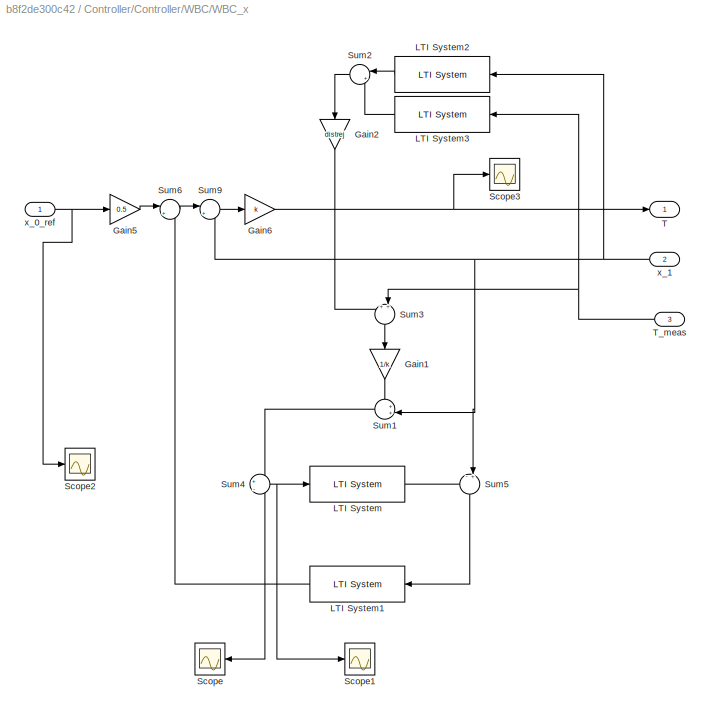
BLOCK [SubSystem] Controller/Controller/WBC/WBC_x
  Ports = [3, 1]
  RequestExecContextInheritance = off
  Variant = off
BLOCK [Gain] Controller/Controller/WBC/WBC_x/Gain1
  Gain = 1/k
  OutDataTypeStr = Inherit: Inherit via internal rule
  ParamDataTypeStr = Inherit: Inherit via internal rule
  SaturateOnIntegerOverflow = off
BLOCK [Gain] Controller/Controller/WBC/WBC_x/Gain2
  Gain = distrej
  OutDataTypeStr = Inherit: Inherit via internal rule
  ParamDataTypeStr = Inherit: Inherit via internal rule
  SaturateOnIntegerOverflow = off
BLOCK [Gain] Controller/Controller/WBC/WBC_x/Gain5
  Gain = 0.5
  OutDataTypeStr = Inherit: Inherit via internal rule
  ParamDataTypeStr = Inherit: Inherit via internal rule
  SaturateOnIntegerOverflow = off
BLOCK [Gain] Controller/Controller/WBC/WBC_x/Gain6
  Gain = k
  OutDataTypeStr = Inherit: Inherit via internal rule
  ParamDataTypeStr = Inherit: Inherit via internal rule
  SaturateOnIntegerOverflow = off
BLOCK [Reference] Controller/Controller/WBC/WBC_x/LTI System  REF=cstblocks/LTI System
  Ports = [1, 1]
  SourceBlock = cstblocks/LTI System
  SourceProductBaseCode = CT
  SourceProductName = Control System Toolbox
  SourceType = LTI Block
BLOCK [Reference] Controller/Controller/WBC/WBC_x/LTI System1  REF=cstblocks/LTI System
  Ports = [1, 1]
  SourceBlock = cstblocks/LTI System
  SourceProductBaseCode = CT
  SourceProductName = Control System Toolbox
  SourceType = LTI Block
BLOCK [Reference] Controller/Controller/WBC/WBC_x/LTI System2  REF=cstblocks/LTI System
  Ports = [1, 1]
  SourceBlock = cstblocks/LTI System
  SourceProductBaseCode = CT
  SourceProductName = Control System Toolbox
  SourceType = LTI Block
BLOCK [Reference] Controller/Controller/WBC/WBC_x/LTI System3  REF=cstblocks/LTI System
  Ports = [1, 1]
  SourceBlock = cstblocks/LTI System
  SourceProductBaseCode = CT
  SourceProductName = Control System Toolbox
  SourceType = LTI Block
BLOCK [Scope] Controller/Controller/WBC/WBC_x/Scope
  NumInputPorts = 1
  Ports = [1]
  ScopeSpecificationString = C++SS(StrPVP('Location','[188, 365, 512, 604]'),StrPVP('Open','off'),MxPVP('AxesTitles',53,'struct(''axes1'',''%<SignalLabel>'')'),MxPVP('ScopeGraphics',56,'struct(''FigureColor'',''[0.5 0.5 0.5]'',''AxesColor'',''[0 0 0]'',''AxesTickColor'',''[1 1 1]'',''LineColors'',''[1 1 0;1 0 1;0 1 1;1 0 0;0 1 0;0 0 1]'',''LineStyles'',''-|-|-|-|-|-'',''LineWidths'',''[0.5 0.5 0.5 0.5 0.5 0.5]'',''MarkerStyle...<+192ch>  <repeated x4 — deduplicated; at blocks: Scope, Scope1, Scope2>
BLOCK [Scope] Controller/Controller/WBC/WBC_x/Scope1
  NumInputPorts = 1
  Ports = [1]
BLOCK [Scope] Controller/Controller/WBC/WBC_x/Scope2
  NumInputPorts = 1
  Ports = [1]
  ScopeSpecificationString = C++SS(StrPVP('Location','[188, 365, 512, 604]'),StrPVP('Open','off'),StrPVP('ZoomMode','yonly'),MxPVP('AxesTitles',53,'struct(''axes1'',''%<SignalLabel>'')'),MxPVP('ScopeGraphics',56,'struct(''FigureColor'',''[0.5 0.5 0.5]'',''AxesColor'',''[0 0 0]'',''AxesTickColor'',''[1 1 1]'',''LineColors'',''[1 1 0;1 0 1;0 1 1;1 0 0;0 1 0;0 0 1]'',''LineStyles'',''-|-|-|-|-|-'',''LineWidths'',''[0.5 0.5 0.5 0...<+219ch>
BLOCK [Scope] Controller/Controller/WBC/WBC_x/Scope3
  NumInputPorts = 1
  Ports = [1]
  ScopeSpecificationString = C++SS(StrPVP('Location','[188, 365, 512, 604]'),StrPVP('Open','off'),StrPVP('ZoomMode','yonly'),MxPVP('AxesTitles',53,'struct(''axes1'',''%<SignalLabel>'')'),MxPVP('ScopeGraphics',56,'struct(''FigureColor'',''[0.5 0.5 0.5]'',''AxesColor'',''[0 0 0]'',''AxesTickColor'',''[1 1 1]'',''LineColors'',''[1 1 0;1 0 1;0 1 1;1 0 0;0 1 0;0 0 1]'',''LineStyles'',''-|-|-|-|-|-'',''LineWidths'',''[0.5 0.5 0.5 0...<+251ch>
BLOCK [Sum] Controller/Controller/WBC/WBC_x/Sum1
  IconShape = round
  InputSameDT = off
  Inputs = ++|
  OutDataTypeStr = Inherit: Inherit via internal rule
  Ports = [2, 1]
  SaturateOnIntegerOverflow = off
BLOCK [Sum] Controller/Controller/WBC/WBC_x/Sum2
  IconShape = round
  InputSameDT = off
  Inputs = |++
  OutDataTypeStr = Inherit: Inherit via internal rule
  Ports = [2, 1]
  SaturateOnIntegerOverflow = off
BLOCK [Sum] Controller/Controller/WBC/WBC_x/Sum3
  IconShape = round
  InputSameDT = off
  Inputs = ++|
  OutDataTypeStr = Inherit: Inherit via internal rule
  Ports = [2, 1]
  SaturateOnIntegerOverflow = off
BLOCK [Sum] Controller/Controller/WBC/WBC_x/Sum4
  IconShape = round
  InputSameDT = off
  Inputs = +|-
  OutDataTypeStr = Inherit: Inherit via internal rule
  Ports = [2, 1]
  SaturateOnIntegerOverflow = off
BLOCK [Sum] Controller/Controller/WBC/WBC_x/Sum5
  IconShape = round
  InputSameDT = off
  Inputs = -+|
  OutDataTypeStr = Inherit: Inherit via internal rule
  Ports = [2, 1]
  SaturateOnIntegerOverflow = off
BLOCK [Sum] Controller/Controller/WBC/WBC_x/Sum6
  IconShape = round
  InputSameDT = off
  Inputs = |++
  OutDataTypeStr = Inherit: Inherit via internal rule
  Ports = [2, 1]
  SaturateOnIntegerOverflow = off
BLOCK [Sum] Controller/Controller/WBC/WBC_x/Sum9
  IconShape = round
  InputSameDT = off
  Inputs = |+-
  OutDataTypeStr = Inherit: Inherit via internal rule
  Ports = [2, 1]
  SaturateOnIntegerOverflow = off
BLOCK [Outport] Controller/Controller/WBC/WBC_x/T
  IconDisplay = Port number
BLOCK [Inport] Controller/Controller/WBC/WBC_x/T_meas
  IconDisplay = Port number
  Port = 3
BLOCK [Inport] Controller/Controller/WBC/WBC_x/x_0_ref
  IconDisplay = Port number
BLOCK [Inport] Controller/Controller/WBC/WBC_x/x_1
  IconDisplay = Port number
  Port = 2
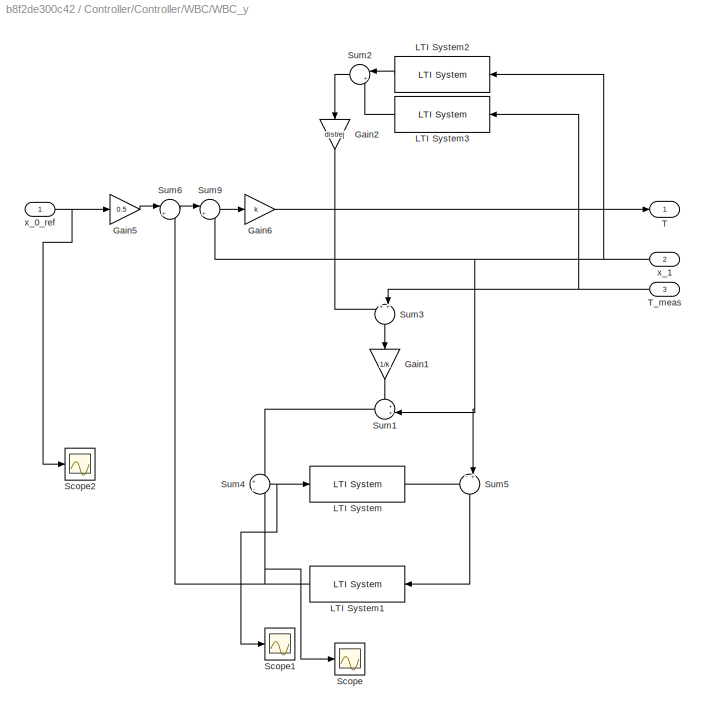
BLOCK [SubSystem] Controller/Controller/WBC/WBC_y
  Ports = [3, 1]
  RequestExecContextInheritance = off
  Variant = off
BLOCK [Gain] Controller/Controller/WBC/WBC_y/Gain1
  Gain = 1/k
  OutDataTypeStr = Inherit: Inherit via internal rule
  ParamDataTypeStr = Inherit: Inherit via internal rule
  SaturateOnIntegerOverflow = off
BLOCK [Gain] Controller/Controller/WBC/WBC_y/Gain2
  Gain = distrej
  OutDataTypeStr = Inherit: Inherit via internal rule
  ParamDataTypeStr = Inherit: Inherit via internal rule
  SaturateOnIntegerOverflow = off
BLOCK [Gain] Controller/Controller/WBC/WBC_y/Gain5
  Gain = 0.5
  OutDataTypeStr = Inherit: Inherit via internal rule
  ParamDataTypeStr = Inherit: Inherit via internal rule
  SaturateOnIntegerOverflow = off
BLOCK [Gain] Controller/Controller/WBC/WBC_y/Gain6
  Gain = k
  OutDataTypeStr = Inherit: Inherit via internal rule
  ParamDataTypeStr = Inherit: Inherit via internal rule
  SaturateOnIntegerOverflow = off
BLOCK [Reference] Controller/Controller/WBC/WBC_y/LTI System  REF=cstblocks/LTI System
  Ports = [1, 1]
  SourceBlock = cstblocks/LTI System
  SourceProductBaseCode = CT
  SourceProductName = Control System Toolbox
  SourceType = LTI Block
BLOCK [Reference] Controller/Controller/WBC/WBC_y/LTI System1  REF=cstblocks/LTI System
  Ports = [1, 1]
  SourceBlock = cstblocks/LTI System
  SourceProductBaseCode = CT
  SourceProductName = Control System Toolbox
  SourceType = LTI Block
BLOCK [Reference] Controller/Controller/WBC/WBC_y/LTI System2  REF=cstblocks/LTI System
  Ports = [1, 1]
  SourceBlock = cstblocks/LTI System
  SourceProductBaseCode = CT
  SourceProductName = Control System Toolbox
  SourceType = LTI Block
BLOCK [Reference] Controller/Controller/WBC/WBC_y/LTI System3  REF=cstblocks/LTI System
  Ports = [1, 1]
  SourceBlock = cstblocks/LTI System
  SourceProductBaseCode = CT
  SourceProductName = Control System Toolbox
  SourceType = LTI Block
BLOCK [Scope] Controller/Controller/WBC/WBC_y/Scope
  NumInputPorts = 1
  Ports = [1]
BLOCK [Scope] Controller/Controller/WBC/WBC_y/Scope1
  NumInputPorts = 1
  Ports = [1]
BLOCK [Scope] Controller/Controller/WBC/WBC_y/Scope2
  NumInputPorts = 1
  Ports = [1]
BLOCK [Sum] Controller/Controller/WBC/WBC_y/Sum1
  IconShape = round
  InputSameDT = off
  Inputs = ++|
  OutDataTypeStr = Inherit: Inherit via internal rule
  Ports = [2, 1]
  SaturateOnIntegerOverflow = off
BLOCK [Sum] Controller/Controller/WBC/WBC_y/Sum2
  IconShape = round
  InputSameDT = off
  Inputs = |++
  OutDataTypeStr = Inherit: Inherit via internal rule
  Ports = [2, 1]
  SaturateOnIntegerOverflow = off
BLOCK [Sum] Controller/Controller/WBC/WBC_y/Sum3
  IconShape = round
  InputSameDT = off
  Inputs = ++|
  OutDataTypeStr = Inherit: Inherit via internal rule
  Ports = [2, 1]
  SaturateOnIntegerOverflow = off
BLOCK [Sum] Controller/Controller/WBC/WBC_y/Sum4
  IconShape = round
  InputSameDT = off
  Inputs = +|-
  OutDataTypeStr = Inherit: Inherit via internal rule
  Ports = [2, 1]
  SaturateOnIntegerOverflow = off
BLOCK [Sum] Controller/Controller/WBC/WBC_y/Sum5
  IconShape = round
  InputSameDT = off
  Inputs = -+|
  OutDataTypeStr = Inherit: Inherit via internal rule
  Ports = [2, 1]
  SaturateOnIntegerOverflow = off
BLOCK [Sum] Controller/Controller/WBC/WBC_y/Sum6
  IconShape = round
  InputSameDT = off
  Inputs = |++
  OutDataTypeStr = Inherit: Inherit via internal rule
  Ports = [2, 1]
  SaturateOnIntegerOverflow = off
BLOCK [Sum] Controller/Controller/WBC/WBC_y/Sum9
  IconShape = round
  InputSameDT = off
  Inputs = |+-
  OutDataTypeStr = Inherit: Inherit via internal rule
  Ports = [2, 1]
  SaturateOnIntegerOverflow = off
BLOCK [Outport] Controller/Controller/WBC/WBC_y/T
  IconDisplay = Port number
BLOCK [Inport] Controller/Controller/WBC/WBC_y/T_meas
  IconDisplay = Port number
  Port = 3
BLOCK [Inport] Controller/Controller/WBC/WBC_y/x_0_ref
  IconDisplay = Port number
BLOCK [Inport] Controller/Controller/WBC/WBC_y/x_1
  IconDisplay = Port number
  Port = 2
BLOCK [SubSystem] Controller/Controller/WBC/WBC_z
  Ports = [3, 1]
  RequestExecContextInheritance = off
  Variant = off
BLOCK [Gain] Controller/Controller/WBC/WBC_z/Gain1
  Gain = 1/k2
  OutDataTypeStr = Inherit: Inherit via internal rule
  ParamDataTypeStr = Inherit: Inherit via internal rule
  SaturateOnIntegerOverflow = off
BLOCK [Gain] Controller/Controller/WBC/WBC_z/Gain2
  Gain = distrej
  OutDataTypeStr = Inherit: Inherit via internal rule
  ParamDataTypeStr = Inherit: Inherit via internal rule
  SaturateOnIntegerOverflow = off
BLOCK [Gain] Controller/Controller/WBC/WBC_z/Gain5
  Gain = 0.5
  OutDataTypeStr = Inherit: Inherit via internal rule
  ParamDataTypeStr = Inherit: Inherit via internal rule
  SaturateOnIntegerOverflow = off
BLOCK [Gain] Controller/Controller/WBC/WBC_z/Gain6
  Gain = k2
  OutDataTypeStr = Inherit: Inherit via internal rule
  ParamDataTypeStr = Inherit: Inherit via internal rule
  SaturateOnIntegerOverflow = off
BLOCK [Reference] Controller/Controller/WBC/WBC_z/LTI System  REF=cstblocks/LTI System
  Ports = [1, 1]
  SourceBlock = cstblocks/LTI System
  SourceProductBaseCode = CT
  SourceProductName = Control System Toolbox
  SourceType = LTI Block
BLOCK [Reference] Controller/Controller/WBC/WBC_z/LTI System1  REF=cstblocks/LTI System
  Ports = [1, 1]
  SourceBlock = cstblocks/LTI System
  SourceProductBaseCode = CT
  SourceProductName = Control System Toolbox
  SourceType = LTI Block
BLOCK [Reference] Controller/Controller/WBC/WBC_z/LTI System2  REF=cstblocks/LTI System
  Ports = [1, 1]
  SourceBlock = cstblocks/LTI System
  SourceProductBaseCode = CT
  SourceProductName = Control System Toolbox
  SourceType = LTI Block
BLOCK [Reference] Controller/Controller/WBC/WBC_z/LTI System3  REF=cstblocks/LTI System
  Ports = [1, 1]
  SourceBlock = cstblocks/LTI System
  SourceProductBaseCode = CT
  SourceProductName = Control System Toolbox
  SourceType = LTI Block
BLOCK [Scope] Controller/Controller/WBC/WBC_z/Scope
  NumInputPorts = 1
  Ports = [1]
BLOCK [Scope] Controller/Controller/WBC/WBC_z/Scope1
  NumInputPorts = 1
  Ports = [1]
BLOCK [Scope] Controller/Controller/WBC/WBC_z/Scope2
  NumInputPorts = 1
  Ports = [1]
BLOCK [Sum] Controller/Controller/WBC/WBC_z/Sum1
  IconShape = round
  InputSameDT = off
  Inputs = ++|
  OutDataTypeStr = Inherit: Inherit via internal rule
  Ports = [2, 1]
  SaturateOnIntegerOverflow = off
BLOCK [Sum] Controller/Controller/WBC/WBC_z/Sum2
  IconShape = round
  InputSameDT = off
  Inputs = |++
  OutDataTypeStr = Inherit: Inherit via internal rule
  Ports = [2, 1]
  SaturateOnIntegerOverflow = off
BLOCK [Sum] Controller/Controller/WBC/WBC_z/Sum3
  IconShape = round
  InputSameDT = off
  Inputs = ++|
  OutDataTypeStr = Inherit: Inherit via internal rule
  Ports = [2, 1]
  SaturateOnIntegerOverflow = off
BLOCK [Sum] Controller/Controller/WBC/WBC_z/Sum4
  IconShape = round
  InputSameDT = off
  Inputs = +|-
  OutDataTypeStr = Inherit: Inherit via internal rule
  Ports = [2, 1]
  SaturateOnIntegerOverflow = off
BLOCK [Sum] Controller/Controller/WBC/WBC_z/Sum5
  IconShape = round
  InputSameDT = off
  Inputs = -+|
  OutDataTypeStr = Inherit: Inherit via internal rule
  Ports = [2, 1]
  SaturateOnIntegerOverflow = off
BLOCK [Sum] Controller/Controller/WBC/WBC_z/Sum6
  IconShape = round
  InputSameDT = off
  Inputs = |++
  OutDataTypeStr = Inherit: Inherit via internal rule
  Ports = [2, 1]
  SaturateOnIntegerOverflow = off
BLOCK [Sum] Controller/Controller/WBC/WBC_z/Sum9
  IconShape = round
  InputSameDT = off
  Inputs = |+-
  OutDataTypeStr = Inherit: Inherit via internal rule
  Ports = [2, 1]
  SaturateOnIntegerOverflow = off
BLOCK [Outport] Controller/Controller/WBC/WBC_z/T
  IconDisplay = Port number
BLOCK [Inport] Controller/Controller/WBC/WBC_z/T_meas
  IconDisplay = Port number
  Port = 3
BLOCK [Inport] Controller/Controller/WBC/WBC_z/x_0_ref
  IconDisplay = Port number
BLOCK [Inport] Controller/Controller/WBC/WBC_z/x_1
  IconDisplay = Port number
  Port = 2
BLOCK [Inport] Controller/Controller/WBC/bus in
  IconDisplay = Port number
BLOCK [Outport] Controller/Controller/WBC/bus out
  IconDisplay = Port number
BLOCK [Inport] Controller/Controller/bus in
  IconDisplay = Port number
BLOCK [Outport] Controller/Controller/bus out
  IconDisplay = Port number
BLOCK [SubSystem] Controller/Controller/no control
  Ports = [1, 1]
  RequestExecContextInheritance = off
  Variant = off
  VariantControl = CtrlType==0
BLOCK [SubSystem] Controller/Controller/no control/Bus
  Commented = on
  Ports = [2, 1]
  RequestExecContextInheritance = off
  Variant = off
BLOCK [BusCreator] Controller/Controller/no control/Bus Creator
  DisplayOption = bar
  InheritFromInputs = on
  Inputs = 2
  Ports = [2, 1]
BLOCK [BusCreator] Controller/Controller/no control/Bus/Bus Creator
  DisplayOption = bar
  InheritFromInputs = on
  Inputs = 10
  Ports = [10, 1]
BLOCK [BusSelector] Controller/Controller/no control/Bus/Bus Selector1
  OutputAsBus = off
  OutputSignals = omega_b_inert,qb_i,LongLatAlt,qb_o,qo_i,omega_orbit,T_ctrlr_meas,B_real,q_ref
  Ports = [1, 9]
BLOCK [Inport] Controller/Controller/no control/Bus/In1
  IconDisplay = Port number
BLOCK [Inport] Controller/Controller/no control/Bus/In2
  IconDisplay = Port number
  Port = 2
BLOCK [Outport] Controller/Controller/no control/Bus/Out1
  IconDisplay = Port number
BLOCK [Constant] Controller/Controller/no control/Constant
  Value = [0;0;0]
BLOCK [Inport] Controller/Controller/no control/bus in
  IconDisplay = Port number
BLOCK [Outport] Controller/Controller/no control/bus out
  IconDisplay = Port number
BLOCK [Inport] Controller/In1
  IconDisplay = Port number
BLOCK [SubSystem] Controller/No Control
  Ports = [1, 1, 0, 0, 0, 0, 0, 1]
  RequestExecContextInheritance = off
  TreatAsAtomicUnit = on
  Variant = off
BLOCK [ActionPort] Controller/No Control/Action Port
  ActionType = case
BLOCK [Constant] Controller/No Control/Constant
  Value = [0,0,0]
BLOCK [Inport] Controller/No Control/In1
  IconDisplay = Port number
BLOCK [Outport] Controller/No Control/Out1
  IconDisplay = Port number
BLOCK [Outport] Controller/Out1
  IconDisplay = Port number
BLOCK [SubSystem] Controller/PD
  Ports = [1, 1, 0, 0, 0, 0, 0, 1]
  RequestExecContextInheritance = off
  TreatAsAtomicUnit = on
  Variant = off
BLOCK [ActionPort] Controller/PD/Action Port
  ActionType = case
BLOCK [BusSelector] Controller/PD/Bus Selector
  OutputAsBus = off
  OutputSignals = sensor_values.qb_i,q_ref,sensor_values.omega_b_inert,sensor_values.B_real
  Ports = [1, 4]
BLOCK [Reference] Controller/PD/Cross Product  REF=vrlib/Utilities/Cross Product
  Ports = [2, 1]
  SourceBlock = vrlib/Utilities/Cross Product
  SourceProductBaseCode = VR
  SourceProductName = Simulink 3D Animation
  SourceType = Cross Product
BLOCK [Reference] Controller/PD/Cross Product1  REF=vrlib/Utilities/Cross Product
  Ports = [2, 1]
  SourceBlock = vrlib/Utilities/Cross Product
  SourceProductBaseCode = VR
  SourceProductName = Simulink 3D Animation
  SourceType = Cross Product
BLOCK [Product] Controller/PD/Divide
  InputSameDT = off
  Inputs = */
  OutDataTypeStr = Inherit: Inherit via internal rule
  Ports = [2, 1]
  RndMeth = Floor
  SaturateOnIntegerOverflow = off
BLOCK [Gain] Controller/PD/Gain
  Gain = -kp
  OutDataTypeStr = Inherit: Inherit via internal rule
  ParamDataTypeStr = Inherit: Inherit via internal rule
  SaturateOnIntegerOverflow = off
BLOCK [Gain] Controller/PD/Gain1
  Gain = -kd
  OutDataTypeStr = Inherit: Inherit via internal rule
  ParamDataTypeStr = Inherit: Inherit via internal rule
  SaturateOnIntegerOverflow = off
BLOCK [Inport] Controller/PD/In1
  IconDisplay = Port number
BLOCK [Math] Controller/PD/Math Function2
  Operator = transpose
  Ports = [1, 1]
BLOCK [Outport] Controller/PD/Out1
  IconDisplay = Port number
BLOCK [Product] Controller/PD/Product
  InputSameDT = off
  Multiplication = Matrix(*)
  OutDataTypeStr = Inherit: Inherit via internal rule
  Ports = [2, 1]
  RndMeth = Floor
  SaturateOnIntegerOverflow = off
BLOCK [Selector] Controller/PD/Selector
  IndexOptions = Index vector (dialog)
  Indices = [2 3 4]
  InputPortWidth = 4
  OutputSizes = 1
  Ports = [1, 1]
BLOCK [Selector] Controller/PD/Selector1
  IndexOptions = Index vector (dialog)
  Indices = [2 3 4]
  InputPortWidth = 4
  OutputSizes = 1
  Ports = [1, 1]
BLOCK [Sum] Controller/PD/Sum
  IconShape = round
  InputSameDT = off
  Inputs = |+-
  OutDataTypeStr = Inherit: Inherit via internal rule
  Ports = [2, 1]
  SaturateOnIntegerOverflow = off
BLOCK [Sum] Controller/PD/Sum1
  InputSameDT = off
  OutDataTypeStr = Inherit: Inherit via internal rule
  Ports = [2, 1]
  SaturateOnIntegerOverflow = off
BLOCK [SubSystem] Controller/PD/Vect Mag
  Ports = [1, 1]
  RequestExecContextInheritance = off
  Variant = off
BLOCK [Inport] Controller/PD/Vect Mag/In1
  IconDisplay = Port number
BLOCK [Math] Controller/PD/Vect Mag/Math Function
  Operator = square
  Ports = [1, 1]
BLOCK [Outport] Controller/PD/Vect Mag/Out1
  IconDisplay = Port number
BLOCK [Sqrt] Controller/PD/Vect Mag/Sqrt
BLOCK [Sum] Controller/PD/Vect Mag/Sum2
  IconShape = round
  InputSameDT = off
  Inputs = +
  OutDataTypeStr = Inherit: Inherit via internal rule
  Ports = [1, 1]
  SaturateOnIntegerOverflow = off
BLOCK [SubSystem] Controller/PD/q2RM1
  Ports = [1, 1]
  RequestExecContextInheritance = off
  Variant = off
BLOCK [Sum] Controller/PD/q2RM1/Add
  InputSameDT = off
  OutDataTypeStr = Inherit: Inherit via internal rule
  Ports = [2, 1]
  SaturateOnIntegerOverflow = off
BLOCK [Constant] Controller/PD/q2RM1/Constant
  Value = eye(3)
BLOCK [Fcn] Controller/PD/q2RM1/Fcn
  Commented = on
  Expr = SkewSym([u(1),u(2),u(3)])
BLOCK [Gain] Controller/PD/q2RM1/Gain
  Gain = 2
  OutDataTypeStr = Inherit: Inherit via internal rule
  ParamDataTypeStr = Inherit: Inherit via internal rule
  SaturateOnIntegerOverflow = off
BLOCK [Inport] Controller/PD/q2RM1/In1
  IconDisplay = Port number
BLOCK [MATLABFcn] Controller/PD/q2RM1/Interpreted MATLAB Function
  MATLABFcn = SkewSym([u(1),u(2),u(3)],1)
  OutputDimensions = 9
  Ports = [1, 1]
BLOCK [Math] Controller/PD/q2RM1/Math Function
  Operator = square
  Ports = [1, 1]
BLOCK [Outport] Controller/PD/q2RM1/Out1
  IconDisplay = Port number
BLOCK [Product] Controller/PD/q2RM1/Product
  InputSameDT = off
  OutDataTypeStr = Inherit: Inherit via internal rule
  Ports = [2, 1]
  RndMeth = Floor
  SaturateOnIntegerOverflow = off
BLOCK [Reshape] Controller/PD/q2RM1/Reshape
  OutputDimensionality = Customize
  OutputDimensions = [3,3]
  Ports = [1, 1]
BLOCK [Selector] Controller/PD/q2RM1/Selector
  IndexOptions = Index vector (dialog)
  Indices = [1]
  InputPortWidth = 4
  OutputSizes = 1
  Ports = [1, 1]
BLOCK [Selector] Controller/PD/q2RM1/Selector1
  IndexOptions = Index vector (dialog)
  Indices = [2 3 4]
  InputPortWidth = 4
  OutputSizes = 1
  Ports = [1, 1]
BLOCK [Sum] Controller/PD/q2RM1/Sum
  InputSameDT = off
  OutDataTypeStr = Inherit: Inherit via internal rule
  Ports = [2, 1]
  SaturateOnIntegerOverflow = off
BLOCK [SwitchCase] Controller/Switch Case
  CaseConditions = {0,1,2,3}
  Ports = [1, 4]
  ShowDefaultCase = off
BLOCK [SubSystem] Disturbances
  Ports = [1, 1]
  RequestExecContextInheritance = off
  Variant = off
BLOCK [BusSelector] Disturbances/Bus Selector
  OutputAsBus = off
  OutputSignals = orbital_dynamics.qb_o,spacecraft_dynamics.omega_b_inert
  Ports = [1, 2]
BLOCK [Constant] Disturbances/Constant
  Value = 7.2157
BLOCK [Constant] Disturbances/Constant1
  Value = omega_orbit
BLOCK [Constant] Disturbances/Constant2
  Value = [0,0,0]
BLOCK [Constant] Disturbances/Constant3
  Value = [0,0,0]
BLOCK [Inport] Disturbances/In1
  IconDisplay = Port number
BLOCK [M-S-Function] Disturbances/Level-2 MATLAB S-Function
  FunctionName = gravityGradientSfun
  Ports = [2, 1]
BLOCK [M-S-Function] Disturbances/Level-2 MATLAB S-Function1
  FunctionName = aeroDragSfun
  Parameters = I,mass,aerodrag_c_p,aerodrag_A_d
  Ports = [4, 1]
BLOCK [Outport] Disturbances/Out1
  IconDisplay = Port number
BLOCK [Sum] Disturbances/Total Dist. Torque
  InputSameDT = off
  Inputs = ++++
  OutDataTypeStr = Inherit: Inherit via internal rule
  Ports = [4, 1]
  SaturateOnIntegerOverflow = off
BLOCK [SubSystem] Environment
  Ports = [1, 1]
  RequestExecContextInheritance = off
  Variant = off
BLOCK [BusCreator] Environment/Bus Creator
  DisplayOption = bar
  InheritFromInputs = on
  Inputs = 3
  Ports = [3, 1]
BLOCK [BusCreator] Environment/Bus Creator1
  DisplayOption = bar
  InheritFromInputs = on
  Inputs = 1
  Ports = [1, 1]
BLOCK [BusSelector] Environment/Bus Selector
  OutputAsBus = off
  OutputSignals = orbital_dynamics.LongLatAlt,spacecraft_dynamics,orbital_dynamics
  Ports = [1, 3]
BLOCK [Constant] Environment/Constant
  Value = 0
BLOCK [Inport] Environment/In1
  IconDisplay = Port number
BLOCK [M-S-Function] Environment/Level-2 MATLAB S-Function
  FunctionName = IGRFSfun
  Parameters = igrf_L,igrf_tol,igrf_G,igrf_H
  Ports = [2, 1]
BLOCK [Outport] Environment/Out1
  IconDisplay = Port number
BLOCK [From] From
  GotoTag = Spacecraft
  TagVisibility = global
BLOCK [From] From1
  GotoTag = Orbit
  TagVisibility = global
BLOCK [SubSystem] Mode Selection
  Ports = [1, 1]
  RequestExecContextInheritance = off
  Variant = off
BLOCK [BusCreator] Mode Selection/Bus Creator
  DisplayOption = bar
  InheritFromInputs = on
  Inputs = 2
  Ports = [2, 1]
BLOCK [Constant] Mode Selection/Constant
BLOCK [Inport] Mode Selection/In1
  IconDisplay = Port number
BLOCK [Outport] Mode Selection/Out1
  IconDisplay = Port number
BLOCK [Outport] Out1
  IconDisplay = Port number
BLOCK [Outport] Out2
  IconDisplay = Port number
  Port = 2
BLOCK [SubSystem] Reference
  Ports = [1, 1]
  RequestExecContextInheritance = off
  Variant = off
BLOCK [BusCreator] Reference/Bus Creator
  DisplayOption = bar
  InheritFromInputs = on
  Inputs = 3
  Ports = [3, 1]
BLOCK [BusSelector] Reference/Bus Selector
  OutputAsBus = off
  OutputSignals = sensor_values,adcs_mode
  Ports = [1, 2]
BLOCK [Constant] Reference/Constant
  Value = q_ref
BLOCK [Inport] Reference/In1
  IconDisplay = Port number
BLOCK [Outport] Reference/Out1
  IconDisplay = Port number
BLOCK [SubSystem] Sensors
  Ports = [1, 1]
  RequestExecContextInheritance = off
  Variant = off
BLOCK [BusCreator] Sensors/Bus Creator
  DisplayOption = bar
  InheritFromInputs = on
  Inputs = 6
  Ports = [6, 1]
BLOCK [BusSelector] Sensors/Bus Selector
  OutputAsBus = off
  OutputSignals = spacecraft_dynamics.omega_b_inert,spacecraft_dynamics.qb_i,orbital_dynamics.LongLatAlt,orbital_dynamics.qb_o,orbital_dynamics.qo_i,Environment.B_real
  Ports = [1, 6]
BLOCK [Inport] Sensors/In1
  IconDisplay = Port number
BLOCK [Outport] Sensors/Out1
  IconDisplay = Port number
BLOCK [SubSystem] Spacecraft
  Ports = [1, 1]
  RequestExecContextInheritance = off
  Variant = off
  VariantControl = Variant1
BLOCK [BusCreator] Spacecraft/Bus Creator1
  DisplayOption = bar
  InheritFromInputs = on
  Inputs = 3
  Ports = [3, 1]
BLOCK [BusCreator] Spacecraft/Bus Creator2
  DisplayOption = bar
  InheritFromInputs = on
  Inputs = 2
  Ports = [2, 1]
BLOCK [BusSelector] Spacecraft/Bus Selector2
  OutputAsBus = off
  OutputSignals = omega_b_inert
  Ports = [1, 1]
BLOCK [Goto] Spacecraft/Goto
  GotoTag = Spacecraft
  TagVisibility = global
BLOCK [Goto] Spacecraft/Goto1
  GotoTag = Orbit
  TagVisibility = global
BLOCK [M-S-Function] Spacecraft/Orbit Propagation
  FunctionName = OrbitSfun
  Parameters = x_orbit_init,omega_orbit
  Ports = [1, 3]
BLOCK [SubSystem] Spacecraft/Spacecraft Rotational Dynamics
  OverrideUsingVariant = Variant1
  Ports = [1, 1]
  RequestExecContextInheritance = off
  Variant = on
  VariantControl = Variant1
BLOCK [Outport] Spacecraft/Spacecraft Rotational Dynamics/ Out1
  IconDisplay = Port number
BLOCK [Inport] Spacecraft/Spacecraft Rotational Dynamics/In1 
  IconDisplay = Port number
BLOCK [SubSystem] Spacecraft/Spacecraft Rotational Dynamics/Subsystem
  Ports = [1, 1]
  RequestExecContextInheritance = off
  Variant = off
  VariantControl = Variant1
BLOCK [BusCreator] Spacecraft/Spacecraft Rotational Dynamics/Subsystem/Bus Creator
  DisplayOption = bar
  InheritFromInputs = on
  Inputs = 2
  Ports = [2, 1]
BLOCK [Inport] Spacecraft/Spacecraft Rotational Dynamics/Subsystem/In1
  IconDisplay = Port number
BLOCK [Outport] Spacecraft/Spacecraft Rotational Dynamics/Subsystem/Out1
  IconDisplay = Port number
BLOCK [M-S-Function] Spacecraft/Spacecraft Rotational Dynamics/Subsystem/Spacecraft Rotational Dynamics
  FunctionName = CubeSatSfun
  Parameters = x_0,I
  Ports = [1, 2]
BLOCK [Inport] Spacecraft/Torque
  IconDisplay = Port number
BLOCK [Outport] Spacecraft/out
  IconDisplay = Port number
BLOCK [Sum] Sum
  IconShape = round
  InputSameDT = off
  OutDataTypeStr = Inherit: Inherit via internal rule
  Ports = [2, 1]
  SaturateOnIntegerOverflow = off
ANNOTATION (root): Spacecraft ADCS Model
ANNOTATION Actuator/Variant Subsystem: 1) Only subsystems can be added as variant choices at this level 2) Blocks cannot be connected at this level as connectivity is automatically determined at simulation, based on the active variant
ANNOTATION Controller/Controller: 1) Only subsystems can be added as variant choices at this level 2) Blocks cannot be connected at this level as connectivity is automatically determined at simulation, based on the active variant
LINE Actuator/In:1 -> Actuator/Variant Subsystem:1
LINE Actuator/Variant Subsystem/2 coil dipole/B vect from inert frm to body frm/B_i:1 -> Actuator/Variant Subsystem/2 coil dipole/B vect from inert frm to body frm/Product:2
LINE Actuator/Variant Subsystem/2 coil dipole/B vect from inert frm to body frm/Math Function2:1 -> Actuator/Variant Subsystem/2 coil dipole/B vect from inert frm to body frm/Product:1
LINE Actuator/Variant Subsystem/2 coil dipole/B vect from inert frm to body frm/Product:1 -> Actuator/Variant Subsystem/2 coil dipole/B vect from inert frm to body frm/B_b:1
LINE Actuator/Variant Subsystem/2 coil dipole/B vect from inert frm to body frm/q2RM/Add:1 -> Actuator/Variant Subsystem/2 coil dipole/B vect from inert frm to body frm/q2RM/Out1:1
LINE Actuator/Variant Subsystem/2 coil dipole/B vect from inert frm to body frm/q2RM/Constant:1 -> Actuator/Variant Subsystem/2 coil dipole/B vect from inert frm to body frm/q2RM/Add:1
LINE Actuator/Variant Subsystem/2 coil dipole/B vect from inert frm to body frm/q2RM/Gain:1 -> Actuator/Variant Subsystem/2 coil dipole/B vect from inert frm to body frm/q2RM/Add:2
NET Actuator/Variant Subsystem/2 coil dipole/B vect from inert frm to body frm/q2RM/In1:1 -> Actuator/Variant Subsystem/2 coil dipole/B vect from inert frm to body frm/q2RM/Selector1:1, Actuator/Variant Subsystem/2 coil dipole/B vect from inert frm to body frm/q2RM/Selector:1
LINE Actuator/Variant Subsystem/2 coil dipole/B vect from inert frm to body frm/q2RM/Interpreted MATLAB Function:1 -> Actuator/Variant Subsystem/2 coil dipole/B vect from inert frm to body frm/q2RM/Reshape:1
LINE Actuator/Variant Subsystem/2 coil dipole/B vect from inert frm to body frm/q2RM/Math Function:1 -> Actuator/Variant Subsystem/2 coil dipole/B vect from inert frm to body frm/q2RM/Sum:2
LINE Actuator/Variant Subsystem/2 coil dipole/B vect from inert frm to body frm/q2RM/Product:1 -> Actuator/Variant Subsystem/2 coil dipole/B vect from inert frm to body frm/q2RM/Sum:1
NET Actuator/Variant Subsystem/2 coil dipole/B vect from inert frm to body frm/q2RM/Reshape:1 -> Actuator/Variant Subsystem/2 coil dipole/B vect from inert frm to body frm/q2RM/Math Function:1, Actuator/Variant Subsystem/2 coil dipole/B vect from inert frm to body frm/q2RM/Product:2
LINE Actuator/Variant Subsystem/2 coil dipole/B vect from inert frm to body frm/q2RM/Selector1:1 -> Actuator/Variant Subsystem/2 coil dipole/B vect from inert frm to body frm/q2RM/Interpreted MATLAB Function:1
LINE Actuator/Variant Subsystem/2 coil dipole/B vect from inert frm to body frm/q2RM/Selector:1 -> Actuator/Variant Subsystem/2 coil dipole/B vect from inert frm to body frm/q2RM/Product:1
LINE Actuator/Variant Subsystem/2 coil dipole/B vect from inert frm to body frm/q2RM/Sum:1 -> Actuator/Variant Subsystem/2 coil dipole/B vect from inert frm to body frm/q2RM/Gain:1
LINE Actuator/Variant Subsystem/2 coil dipole/B vect from inert frm to body frm/q2RM:1 -> Actuator/Variant Subsystem/2 coil dipole/B vect from inert frm to body frm/Math Function2:1
LINE Actuator/Variant Subsystem/2 coil dipole/B vect from inert frm to body frm/q:1 -> Actuator/Variant Subsystem/2 coil dipole/B vect from inert frm to body frm/q2RM:1
LINE Actuator/Variant Subsystem/2 coil dipole/B vect from inert frm to body frm:1 -> Actuator/Variant Subsystem/2 coil dipole/Cross Product:2
LINE Actuator/Variant Subsystem/2 coil dipole/Bus Assignment:1 -> Actuator/Variant Subsystem/2 coil dipole/Out1:1
LINE Actuator/Variant Subsystem/2 coil dipole/Bus Selector:1 -> Actuator/Variant Subsystem/2 coil dipole/Selector:1
LINE Actuator/Variant Subsystem/2 coil dipole/Bus Selector:2 -> Actuator/Variant Subsystem/2 coil dipole/B vect from inert frm to body frm:1
LINE Actuator/Variant Subsystem/2 coil dipole/Bus Selector:3 -> Actuator/Variant Subsystem/2 coil dipole/B vect from inert frm to body frm:2
LINE Actuator/Variant Subsystem/2 coil dipole/Constant3:1 -> Actuator/Variant Subsystem/2 coil dipole/Mux1:2
LINE Actuator/Variant Subsystem/2 coil dipole/Constant:1 -> Actuator/Variant Subsystem/2 coil dipole/Divide:2
LINE Actuator/Variant Subsystem/2 coil dipole/Cross Product:1 -> Actuator/Variant Subsystem/2 coil dipole/Bus Assignment:3
LINE Actuator/Variant Subsystem/2 coil dipole/Divide:1 -> Actuator/Variant Subsystem/2 coil dipole/Bus Assignment:4
NET Actuator/Variant Subsystem/2 coil dipole/In1:1 -> Actuator/Variant Subsystem/2 coil dipole/Bus Assignment:1, Actuator/Variant Subsystem/2 coil dipole/Bus Selector:1
LINE Actuator/Variant Subsystem/2 coil dipole/Mux1:1 -> Actuator/Variant Subsystem/2 coil dipole/Saturation:1
NET Actuator/Variant Subsystem/2 coil dipole/Saturation:1 -> Actuator/Variant Subsystem/2 coil dipole/Bus Assignment:2, Actuator/Variant Subsystem/2 coil dipole/Cross Product:1, Actuator/Variant Subsystem/2 coil dipole/Divide:1
LINE Actuator/Variant Subsystem/2 coil dipole/Selector:1 -> Actuator/Variant Subsystem/2 coil dipole/Mux1:1
LINE Actuator/Variant Subsystem/3 coil dipole/B vect from inert frm to body frm/B_i:1 -> Actuator/Variant Subsystem/3 coil dipole/B vect from inert frm to body frm/Product:2
LINE Actuator/Variant Subsystem/3 coil dipole/B vect from inert frm to body frm/Math Function2:1 -> Actuator/Variant Subsystem/3 coil dipole/B vect from inert frm to body frm/Product:1
LINE Actuator/Variant Subsystem/3 coil dipole/B vect from inert frm to body frm/Product:1 -> Actuator/Variant Subsystem/3 coil dipole/B vect from inert frm to body frm/B_b:1
LINE Actuator/Variant Subsystem/3 coil dipole/B vect from inert frm to body frm/q2RM/Add:1 -> Actuator/Variant Subsystem/3 coil dipole/B vect from inert frm to body frm/q2RM/Out1:1
LINE Actuator/Variant Subsystem/3 coil dipole/B vect from inert frm to body frm/q2RM/Constant:1 -> Actuator/Variant Subsystem/3 coil dipole/B vect from inert frm to body frm/q2RM/Add:1
LINE Actuator/Variant Subsystem/3 coil dipole/B vect from inert frm to body frm/q2RM/Gain:1 -> Actuator/Variant Subsystem/3 coil dipole/B vect from inert frm to body frm/q2RM/Add:2
NET Actuator/Variant Subsystem/3 coil dipole/B vect from inert frm to body frm/q2RM/In1:1 -> Actuator/Variant Subsystem/3 coil dipole/B vect from inert frm to body frm/q2RM/Selector1:1, Actuator/Variant Subsystem/3 coil dipole/B vect from inert frm to body frm/q2RM/Selector:1
LINE Actuator/Variant Subsystem/3 coil dipole/B vect from inert frm to body frm/q2RM/Interpreted MATLAB Function:1 -> Actuator/Variant Subsystem/3 coil dipole/B vect from inert frm to body frm/q2RM/Reshape:1
LINE Actuator/Variant Subsystem/3 coil dipole/B vect from inert frm to body frm/q2RM/Math Function:1 -> Actuator/Variant Subsystem/3 coil dipole/B vect from inert frm to body frm/q2RM/Sum:2
LINE Actuator/Variant Subsystem/3 coil dipole/B vect from inert frm to body frm/q2RM/Product:1 -> Actuator/Variant Subsystem/3 coil dipole/B vect from inert frm to body frm/q2RM/Sum:1
NET Actuator/Variant Subsystem/3 coil dipole/B vect from inert frm to body frm/q2RM/Reshape:1 -> Actuator/Variant Subsystem/3 coil dipole/B vect from inert frm to body frm/q2RM/Math Function:1, Actuator/Variant Subsystem/3 coil dipole/B vect from inert frm to body frm/q2RM/Product:2
LINE Actuator/Variant Subsystem/3 coil dipole/B vect from inert frm to body frm/q2RM/Selector1:1 -> Actuator/Variant Subsystem/3 coil dipole/B vect from inert frm to body frm/q2RM/Interpreted MATLAB Function:1
LINE Actuator/Variant Subsystem/3 coil dipole/B vect from inert frm to body frm/q2RM/Selector:1 -> Actuator/Variant Subsystem/3 coil dipole/B vect from inert frm to body frm/q2RM/Product:1
LINE Actuator/Variant Subsystem/3 coil dipole/B vect from inert frm to body frm/q2RM/Sum:1 -> Actuator/Variant Subsystem/3 coil dipole/B vect from inert frm to body frm/q2RM/Gain:1
LINE Actuator/Variant Subsystem/3 coil dipole/B vect from inert frm to body frm/q2RM:1 -> Actuator/Variant Subsystem/3 coil dipole/B vect from inert frm to body frm/Math Function2:1
LINE Actuator/Variant Subsystem/3 coil dipole/B vect from inert frm to body frm/q:1 -> Actuator/Variant Subsystem/3 coil dipole/B vect from inert frm to body frm/q2RM:1
LINE Actuator/Variant Subsystem/3 coil dipole/B vect from inert frm to body frm:1 -> Actuator/Variant Subsystem/3 coil dipole/Cross Product:2
LINE Actuator/Variant Subsystem/3 coil dipole/Bus Assignment:1 -> Actuator/Variant Subsystem/3 coil dipole/Out1:1
LINE Actuator/Variant Subsystem/3 coil dipole/Bus Selector:1 -> Actuator/Variant Subsystem/3 coil dipole/Saturation:1
LINE Actuator/Variant Subsystem/3 coil dipole/Bus Selector:2 -> Actuator/Variant Subsystem/3 coil dipole/B vect from inert frm to body frm:1
LINE Actuator/Variant Subsystem/3 coil dipole/Bus Selector:3 -> Actuator/Variant Subsystem/3 coil dipole/B vect from inert frm to body frm:2
LINE Actuator/Variant Subsystem/3 coil dipole/Constant:1 -> Actuator/Variant Subsystem/3 coil dipole/Divide:2
LINE Actuator/Variant Subsystem/3 coil dipole/Cross Product:1 -> Actuator/Variant Subsystem/3 coil dipole/Bus Assignment:3
LINE Actuator/Variant Subsystem/3 coil dipole/Divide:1 -> Actuator/Variant Subsystem/3 coil dipole/Bus Assignment:4
NET Actuator/Variant Subsystem/3 coil dipole/In1:1 -> Actuator/Variant Subsystem/3 coil dipole/Bus Assignment:1, Actuator/Variant Subsystem/3 coil dipole/Bus Selector:1
NET Actuator/Variant Subsystem/3 coil dipole/Saturation:1 -> Actuator/Variant Subsystem/3 coil dipole/Bus Assignment:2, Actuator/Variant Subsystem/3 coil dipole/Cross Product:1, Actuator/Variant Subsystem/3 coil dipole/Divide:1
LINE Actuator/Variant Subsystem/Ideal/In1:1 -> Actuator/Variant Subsystem/Ideal/Out1:1
LINE Actuator/Variant Subsystem/Three Axis MagTorq/B vect from inert frm to body frm/B_i:1 -> Actuator/Variant Subsystem/Three Axis MagTorq/B vect from inert frm to body frm/Product:2
LINE Actuator/Variant Subsystem/Three Axis MagTorq/B vect from inert frm to body frm/Math Function1:1 -> Actuator/Variant Subsystem/Three Axis MagTorq/B vect from inert frm to body frm/Product:1
LINE Actuator/Variant Subsystem/Three Axis MagTorq/B vect from inert frm to body frm/Product:1 -> Actuator/Variant Subsystem/Three Axis MagTorq/B vect from inert frm to body frm/B_b:1
LINE Actuator/Variant Subsystem/Three Axis MagTorq/B vect from inert frm to body frm/q2RM2/Add:1 -> Actuator/Variant Subsystem/Three Axis MagTorq/B vect from inert frm to body frm/q2RM2/Out1:1
NET Actuator/Variant Subsystem/Three Axis MagTorq/B vect from inert frm to body frm/q2RM2/Constant:1 -> Actuator/Variant Subsystem/Three Axis MagTorq/B vect from inert frm to body frm/q2RM2/Add:1, Actuator/Variant Subsystem/Three Axis MagTorq/B vect from inert frm to body frm/q2RM2/Scope:1
LINE Actuator/Variant Subsystem/Three Axis MagTorq/B vect from inert frm to body frm/q2RM2/Gain:1 -> Actuator/Variant Subsystem/Three Axis MagTorq/B vect from inert frm to body frm/q2RM2/Add:2
NET Actuator/Variant Subsystem/Three Axis MagTorq/B vect from inert frm to body frm/q2RM2/In1:1 -> Actuator/Variant Subsystem/Three Axis MagTorq/B vect from inert frm to body frm/q2RM2/Selector1:1, Actuator/Variant Subsystem/Three Axis MagTorq/B vect from inert frm to body frm/q2RM2/Selector:1
LINE Actuator/Variant Subsystem/Three Axis MagTorq/B vect from inert frm to body frm/q2RM2/Interpreted MATLAB Function:1 -> Actuator/Variant Subsystem/Three Axis MagTorq/B vect from inert frm to body frm/q2RM2/Reshape:1
LINE Actuator/Variant Subsystem/Three Axis MagTorq/B vect from inert frm to body frm/q2RM2/Math Function:1 -> Actuator/Variant Subsystem/Three Axis MagTorq/B vect from inert frm to body frm/q2RM2/Sum:2
LINE Actuator/Variant Subsystem/Three Axis MagTorq/B vect from inert frm to body frm/q2RM2/Product:1 -> Actuator/Variant Subsystem/Three Axis MagTorq/B vect from inert frm to body frm/q2RM2/Sum:1
NET Actuator/Variant Subsystem/Three Axis MagTorq/B vect from inert frm to body frm/q2RM2/Reshape:1 -> Actuator/Variant Subsystem/Three Axis MagTorq/B vect from inert frm to body frm/q2RM2/Math Function:1, Actuator/Variant Subsystem/Three Axis MagTorq/B vect from inert frm to body frm/q2RM2/Product:2
LINE Actuator/Variant Subsystem/Three Axis MagTorq/B vect from inert frm to body frm/q2RM2/Selector1:1 -> Actuator/Variant Subsystem/Three Axis MagTorq/B vect from inert frm to body frm/q2RM2/Interpreted MATLAB Function:1
LINE Actuator/Variant Subsystem/Three Axis MagTorq/B vect from inert frm to body frm/q2RM2/Selector:1 -> Actuator/Variant Subsystem/Three Axis MagTorq/B vect from inert frm to body frm/q2RM2/Product:1
LINE Actuator/Variant Subsystem/Three Axis MagTorq/B vect from inert frm to body frm/q2RM2/Sum:1 -> Actuator/Variant Subsystem/Three Axis MagTorq/B vect from inert frm to body frm/q2RM2/Gain:1
LINE Actuator/Variant Subsystem/Three Axis MagTorq/B vect from inert frm to body frm/q2RM2:1 -> Actuator/Variant Subsystem/Three Axis MagTorq/B vect from inert frm to body frm/Math Function1:1
LINE Actuator/Variant Subsystem/Three Axis MagTorq/B vect from inert frm to body frm/q:1 -> Actuator/Variant Subsystem/Three Axis MagTorq/B vect from inert frm to body frm/q2RM2:1
LINE Actuator/Variant Subsystem/Three Axis MagTorq/B vect from inert frm to body frm1/B_i:1 -> Actuator/Variant Subsystem/Three Axis MagTorq/B vect from inert frm to body frm1/Product1:2
LINE Actuator/Variant Subsystem/Three Axis MagTorq/B vect from inert frm to body frm1/Math Function1:1 -> Actuator/Variant Subsystem/Three Axis MagTorq/B vect from inert frm to body frm1/Product1:1
LINE Actuator/Variant Subsystem/Three Axis MagTorq/B vect from inert frm to body frm1/Product1:1 -> Actuator/Variant Subsystem/Three Axis MagTorq/B vect from inert frm to body frm1/B_b:1
LINE Actuator/Variant Subsystem/Three Axis MagTorq/B vect from inert frm to body frm1/q2RM2/Add:1 -> Actuator/Variant Subsystem/Three Axis MagTorq/B vect from inert frm to body frm1/q2RM2/Out1:1
LINE Actuator/Variant Subsystem/Three Axis MagTorq/B vect from inert frm to body frm1/q2RM2/Constant:1 -> Actuator/Variant Subsystem/Three Axis MagTorq/B vect from inert frm to body frm1/q2RM2/Add:1
LINE Actuator/Variant Subsystem/Three Axis MagTorq/B vect from inert frm to body frm1/q2RM2/Gain:1 -> Actuator/Variant Subsystem/Three Axis MagTorq/B vect from inert frm to body frm1/q2RM2/Add:2
NET Actuator/Variant Subsystem/Three Axis MagTorq/B vect from inert frm to body frm1/q2RM2/In1:1 -> Actuator/Variant Subsystem/Three Axis MagTorq/B vect from inert frm to body frm1/q2RM2/Selector1:1, Actuator/Variant Subsystem/Three Axis MagTorq/B vect from inert frm to body frm1/q2RM2/Selector:1
LINE Actuator/Variant Subsystem/Three Axis MagTorq/B vect from inert frm to body frm1/q2RM2/Interpreted MATLAB Function:1 -> Actuator/Variant Subsystem/Three Axis MagTorq/B vect from inert frm to body frm1/q2RM2/Reshape:1
LINE Actuator/Variant Subsystem/Three Axis MagTorq/B vect from inert frm to body frm1/q2RM2/Math Function:1 -> Actuator/Variant Subsystem/Three Axis MagTorq/B vect from inert frm to body frm1/q2RM2/Sum:2
LINE Actuator/Variant Subsystem/Three Axis MagTorq/B vect from inert frm to body frm1/q2RM2/Product:1 -> Actuator/Variant Subsystem/Three Axis MagTorq/B vect from inert frm to body frm1/q2RM2/Sum:1
NET Actuator/Variant Subsystem/Three Axis MagTorq/B vect from inert frm to body frm1/q2RM2/Reshape:1 -> Actuator/Variant Subsystem/Three Axis MagTorq/B vect from inert frm to body frm1/q2RM2/Math Function:1, Actuator/Variant Subsystem/Three Axis MagTorq/B vect from inert frm to body frm1/q2RM2/Product:2
LINE Actuator/Variant Subsystem/Three Axis MagTorq/B vect from inert frm to body frm1/q2RM2/Selector1:1 -> Actuator/Variant Subsystem/Three Axis MagTorq/B vect from inert frm to body frm1/q2RM2/Interpreted MATLAB Function:1
LINE Actuator/Variant Subsystem/Three Axis MagTorq/B vect from inert frm to body frm1/q2RM2/Selector:1 -> Actuator/Variant Subsystem/Three Axis MagTorq/B vect from inert frm to body frm1/q2RM2/Product:1
LINE Actuator/Variant Subsystem/Three Axis MagTorq/B vect from inert frm to body frm1/q2RM2/Sum:1 -> Actuator/Variant Subsystem/Three Axis MagTorq/B vect from inert frm to body frm1/q2RM2/Gain:1
LINE Actuator/Variant Subsystem/Three Axis MagTorq/B vect from inert frm to body frm1/q2RM2:1 -> Actuator/Variant Subsystem/Three Axis MagTorq/B vect from inert frm to body frm1/Math Function1:1
LINE Actuator/Variant Subsystem/Three Axis MagTorq/B vect from inert frm to body frm1/q:1 -> Actuator/Variant Subsystem/Three Axis MagTorq/B vect from inert frm to body frm1/q2RM2:1
LINE Actuator/Variant Subsystem/Three Axis MagTorq/Bus Assignment:1 -> Actuator/Variant Subsystem/Three Axis MagTorq/Out1:1
LINE Actuator/Variant Subsystem/Three Axis MagTorq/Bus Selector:1 -> Actuator/Variant Subsystem/Three Axis MagTorq/Level-2 MATLAB S-Function:1
NET Actuator/Variant Subsystem/Three Axis MagTorq/Bus Selector:2 -> Actuator/Variant Subsystem/Three Axis MagTorq/B vect from inert frm to body frm:2, Actuator/Variant Subsystem/Three Axis MagTorq/Level-2 MATLAB S-Function:2
NET Actuator/Variant Subsystem/Three Axis MagTorq/Bus Selector:3 -> Actuator/Variant Subsystem/Three Axis MagTorq/B vect from inert frm to body frm1:2, Actuator/Variant Subsystem/Three Axis MagTorq/Level-2 MATLAB S-Function:3
NET Actuator/Variant Subsystem/Three Axis MagTorq/Bus Selector:4 -> Actuator/Variant Subsystem/Three Axis MagTorq/B vect from inert frm to body frm1:1, Actuator/Variant Subsystem/Three Axis MagTorq/B vect from inert frm to body frm:1
NET Actuator/Variant Subsystem/Three Axis MagTorq/In1:1 -> Actuator/Variant Subsystem/Three Axis MagTorq/Bus Assignment:1, Actuator/Variant Subsystem/Three Axis MagTorq/Bus Selector:1
LINE Actuator/Variant Subsystem/Three Axis MagTorq/Level-2 MATLAB S-Function:1 -> Actuator/Variant Subsystem/Three Axis MagTorq/Bus Assignment:2
LINE Actuator/Variant Subsystem/Three Axis MagTorq/Level-2 MATLAB S-Function:2 -> Actuator/Variant Subsystem/Three Axis MagTorq/Bus Assignment:3
LINE Actuator/Variant Subsystem/Three Axis MagTorq/Level-2 MATLAB S-Function:3 -> Actuator/Variant Subsystem/Three Axis MagTorq/Bus Assignment:4
LINE Actuator/Variant Subsystem/Two Axis MagTorq/Bus Creator:1 -> Actuator/Variant Subsystem/Two Axis MagTorq/Out1:1
LINE Actuator/Variant Subsystem/Two Axis MagTorq/Bus Selector:1 -> Actuator/Variant Subsystem/Two Axis MagTorq/Level-2 MATLAB S-Function:1
LINE Actuator/Variant Subsystem/Two Axis MagTorq/Bus Selector:2 -> Actuator/Variant Subsystem/Two Axis MagTorq/Level-2 MATLAB S-Function:2
LINE Actuator/Variant Subsystem/Two Axis MagTorq/Bus Selector:3 -> Actuator/Variant Subsystem/Two Axis MagTorq/Level-2 MATLAB S-Function:3
NET Actuator/Variant Subsystem/Two Axis MagTorq/In1:1 -> Actuator/Variant Subsystem/Two Axis MagTorq/Bus Creator:1, Actuator/Variant Subsystem/Two Axis MagTorq/Bus Selector:1
LINE Actuator/Variant Subsystem/Two Axis MagTorq/Level-2 MATLAB S-Function:1 -> Actuator/Variant Subsystem/Two Axis MagTorq/Selector:1
LINE Actuator/Variant Subsystem/Two Axis MagTorq/Level-2 MATLAB S-Function:2 -> Actuator/Variant Subsystem/Two Axis MagTorq/Bus Creator:3
LINE Actuator/Variant Subsystem/Two Axis MagTorq/Selector:1 -> Actuator/Variant Subsystem/Two Axis MagTorq/Bus Creator:2
LINE Actuator/Variant Subsystem:1 -> Actuator/Out:1
LINE Actuator:1 -> Sum:2
LINE Controller/Add:1 -> Controller/Out1:1
NET Controller/Bus Creator:1 -> Controller/No Control:1, Controller/PD:1
LINE Controller/Bus Selector:1 -> Controller/Bus Creator:1
LINE Controller/Bus Selector:2 -> Controller/Bus Creator:2
LINE Controller/Bus Selector:3 -> Controller/Switch Case:1
LINE Controller/Controller/B dot/Bus Creator:1 -> Controller/Controller/B dot/bus out:1
LINE Controller/Controller/B dot/Bus Selector:4 -> Controller/Controller/B dot/Derivative:1
LINE Controller/Controller/B dot/Derivative:1 -> Controller/Controller/B dot/Gain:1
LINE Controller/Controller/B dot/Gain:1 -> Controller/Controller/B dot/Bus Creator:2
NET Controller/Controller/B dot/bus in:1 -> Controller/Controller/B dot/Bus Creator:1, Controller/Controller/B dot/Bus Selector:1
LINE Controller/Controller/PD Zenith/B vect from inert frm to body frm/In1:1 -> Controller/Controller/PD Zenith/B vect from inert frm to body frm/q2RM2:1
LINE Controller/Controller/PD Zenith/B vect from inert frm to body frm/In2:1 -> Controller/Controller/PD Zenith/B vect from inert frm to body frm/Product1:2
LINE Controller/Controller/PD Zenith/B vect from inert frm to body frm/Math Function1:1 -> Controller/Controller/PD Zenith/B vect from inert frm to body frm/Product1:1
LINE Controller/Controller/PD Zenith/B vect from inert frm to body frm/Product1:1 -> Controller/Controller/PD Zenith/B vect from inert frm to body frm/Out1:1
LINE Controller/Controller/PD Zenith/B vect from inert frm to body frm/q2RM2/Add:1 -> Controller/Controller/PD Zenith/B vect from inert frm to body frm/q2RM2/Out1:1
LINE Controller/Controller/PD Zenith/B vect from inert frm to body frm/q2RM2/Constant:1 -> Controller/Controller/PD Zenith/B vect from inert frm to body frm/q2RM2/Add:1
LINE Controller/Controller/PD Zenith/B vect from inert frm to body frm/q2RM2/Gain:1 -> Controller/Controller/PD Zenith/B vect from inert frm to body frm/q2RM2/Add:2
NET Controller/Controller/PD Zenith/B vect from inert frm to body frm/q2RM2/In1:1 -> Controller/Controller/PD Zenith/B vect from inert frm to body frm/q2RM2/Selector1:1, Controller/Controller/PD Zenith/B vect from inert frm to body frm/q2RM2/Selector:1
LINE Controller/Controller/PD Zenith/B vect from inert frm to body frm/q2RM2/Interpreted MATLAB Function:1 -> Controller/Controller/PD Zenith/B vect from inert frm to body frm/q2RM2/Reshape:1
LINE Controller/Controller/PD Zenith/B vect from inert frm to body frm/q2RM2/Math Function:1 -> Controller/Controller/PD Zenith/B vect from inert frm to body frm/q2RM2/Sum:2
LINE Controller/Controller/PD Zenith/B vect from inert frm to body frm/q2RM2/Product:1 -> Controller/Controller/PD Zenith/B vect from inert frm to body frm/q2RM2/Sum:1
NET Controller/Controller/PD Zenith/B vect from inert frm to body frm/q2RM2/Reshape:1 -> Controller/Controller/PD Zenith/B vect from inert frm to body frm/q2RM2/Math Function:1, Controller/Controller/PD Zenith/B vect from inert frm to body frm/q2RM2/Product:2
LINE Controller/Controller/PD Zenith/B vect from inert frm to body frm/q2RM2/Selector1:1 -> Controller/Controller/PD Zenith/B vect from inert frm to body frm/q2RM2/Interpreted MATLAB Function:1
LINE Controller/Controller/PD Zenith/B vect from inert frm to body frm/q2RM2/Selector:1 -> Controller/Controller/PD Zenith/B vect from inert frm to body frm/q2RM2/Product:1
LINE Controller/Controller/PD Zenith/B vect from inert frm to body frm/q2RM2/Sum:1 -> Controller/Controller/PD Zenith/B vect from inert frm to body frm/q2RM2/Gain:1
LINE Controller/Controller/PD Zenith/B vect from inert frm to body frm/q2RM2:1 -> Controller/Controller/PD Zenith/B vect from inert frm to body frm/Math Function1:1
NET Controller/Controller/PD Zenith/B vect from inert frm to body frm:1 -> Controller/Controller/PD Zenith/Cross Product1:1, Controller/Controller/PD Zenith/Cross Product:1, Controller/Controller/PD Zenith/Vect Mag:1
LINE Controller/Controller/PD Zenith/Bus Assignment:1 -> Controller/Controller/PD Zenith/bus out:1
LINE Controller/Controller/PD Zenith/Bus Selector:1 -> Controller/Controller/PD Zenith/B vect from inert frm to body frm:1
LINE Controller/Controller/PD Zenith/Bus Selector:2 -> Controller/Controller/PD Zenith/Sum2:1
LINE Controller/Controller/PD Zenith/Bus Selector:3 -> Controller/Controller/PD Zenith/B vect from inert frm to body frm:2
NET Controller/Controller/PD Zenith/Bus Selector:4 -> Controller/Controller/PD Zenith/Selector:1, Controller/Controller/PD Zenith/omega orb from orb frm to body frm:1
LINE Controller/Controller/PD Zenith/Constant:1 -> Controller/Controller/PD Zenith/omega orb from orb frm to body frm:2
LINE Controller/Controller/PD Zenith/Cross Product1:1 -> Controller/Controller/PD Zenith/Gain:1
LINE Controller/Controller/PD Zenith/Cross Product:1 -> Controller/Controller/PD Zenith/Gain1:1
LINE Controller/Controller/PD Zenith/Divide:1 -> Controller/Controller/PD Zenith/Bus Assignment:2
LINE Controller/Controller/PD Zenith/Gain1:1 -> Controller/Controller/PD Zenith/Sum1:2
LINE Controller/Controller/PD Zenith/Gain:1 -> Controller/Controller/PD Zenith/Sum1:1
LINE Controller/Controller/PD Zenith/Selector:1 -> Controller/Controller/PD Zenith/Cross Product1:2
LINE Controller/Controller/PD Zenith/Sum1:1 -> Controller/Controller/PD Zenith/Divide:1
LINE Controller/Controller/PD Zenith/Sum2:1 -> Controller/Controller/PD Zenith/Cross Product:2
LINE Controller/Controller/PD Zenith/Vect Mag/In1:1 -> Controller/Controller/PD Zenith/Vect Mag/Math Function:1
LINE Controller/Controller/PD Zenith/Vect Mag/Math Function:1 -> Controller/Controller/PD Zenith/Vect Mag/Sum2:1
LINE Controller/Controller/PD Zenith/Vect Mag/Sqrt:1 -> Controller/Controller/PD Zenith/Vect Mag/Out1:1
LINE Controller/Controller/PD Zenith/Vect Mag/Sum2:1 -> Controller/Controller/PD Zenith/Vect Mag/Sqrt:1
LINE Controller/Controller/PD Zenith/Vect Mag:1 -> Controller/Controller/PD Zenith/Divide:2
NET Controller/Controller/PD Zenith/bus in:1 -> Controller/Controller/PD Zenith/Bus Assignment:1, Controller/Controller/PD Zenith/Bus Selector:1
LINE Controller/Controller/PD Zenith/omega orb from orb frm to body frm/In1:1 -> Controller/Controller/PD Zenith/omega orb from orb frm to body frm/q2RM1:1
LINE Controller/Controller/PD Zenith/omega orb from orb frm to body frm/In2:1 -> Controller/Controller/PD Zenith/omega orb from orb frm to body frm/Product:2
LINE Controller/Controller/PD Zenith/omega orb from orb frm to body frm/Math Function2:1 -> Controller/Controller/PD Zenith/omega orb from orb frm to body frm/Product:1
LINE Controller/Controller/PD Zenith/omega orb from orb frm to body frm/Product:1 -> Controller/Controller/PD Zenith/omega orb from orb frm to body frm/Out1:1
LINE Controller/Controller/PD Zenith/omega orb from orb frm to body frm/q2RM1/Add:1 -> Controller/Controller/PD Zenith/omega orb from orb frm to body frm/q2RM1/Out1:1
LINE Controller/Controller/PD Zenith/omega orb from orb frm to body frm/q2RM1/Constant:1 -> Controller/Controller/PD Zenith/omega orb from orb frm to body frm/q2RM1/Add:1
LINE Controller/Controller/PD Zenith/omega orb from orb frm to body frm/q2RM1/Gain:1 -> Controller/Controller/PD Zenith/omega orb from orb frm to body frm/q2RM1/Add:2
NET Controller/Controller/PD Zenith/omega orb from orb frm to body frm/q2RM1/In1:1 -> Controller/Controller/PD Zenith/omega orb from orb frm to body frm/q2RM1/Selector1:1, Controller/Controller/PD Zenith/omega orb from orb frm to body frm/q2RM1/Selector:1
LINE Controller/Controller/PD Zenith/omega orb from orb frm to body frm/q2RM1/Interpreted MATLAB Function:1 -> Controller/Controller/PD Zenith/omega orb from orb frm to body frm/q2RM1/Reshape:1
LINE Controller/Controller/PD Zenith/omega orb from orb frm to body frm/q2RM1/Math Function:1 -> Controller/Controller/PD Zenith/omega orb from orb frm to body frm/q2RM1/Sum:2
LINE Controller/Controller/PD Zenith/omega orb from orb frm to body frm/q2RM1/Product:1 -> Controller/Controller/PD Zenith/omega orb from orb frm to body frm/q2RM1/Sum:1
NET Controller/Controller/PD Zenith/omega orb from orb frm to body frm/q2RM1/Reshape:1 -> Controller/Controller/PD Zenith/omega orb from orb frm to body frm/q2RM1/Math Function:1, Controller/Controller/PD Zenith/omega orb from orb frm to body frm/q2RM1/Product:2
LINE Controller/Controller/PD Zenith/omega orb from orb frm to body frm/q2RM1/Selector1:1 -> Controller/Controller/PD Zenith/omega orb from orb frm to body frm/q2RM1/Interpreted MATLAB Function:1
LINE Controller/Controller/PD Zenith/omega orb from orb frm to body frm/q2RM1/Selector:1 -> Controller/Controller/PD Zenith/omega orb from orb frm to body frm/q2RM1/Product:1
LINE Controller/Controller/PD Zenith/omega orb from orb frm to body frm/q2RM1/Sum:1 -> Controller/Controller/PD Zenith/omega orb from orb frm to body frm/q2RM1/Gain:1
LINE Controller/Controller/PD Zenith/omega orb from orb frm to body frm/q2RM1:1 -> Controller/Controller/PD Zenith/omega orb from orb frm to body frm/Math Function2:1
LINE Controller/Controller/PD Zenith/omega orb from orb frm to body frm:1 -> Controller/Controller/PD Zenith/Sum2:2
NET Controller/Controller/PD/Bus Selector:1 -> Controller/Controller/PD/Selector:1, Controller/Controller/PD/q2RM1:1
LINE Controller/Controller/PD/Bus Selector:2 -> Controller/Controller/PD/Selector1:1
LINE Controller/Controller/PD/Bus Selector:3 -> Controller/Controller/PD/Cross Product:2
LINE Controller/Controller/PD/Bus Selector:4 -> Controller/Controller/PD/Product:2
LINE Controller/Controller/PD/Cross Product1:1 -> Controller/Controller/PD/Gain:1
LINE Controller/Controller/PD/Cross Product:1 -> Controller/Controller/PD/Gain1:1
LINE Controller/Controller/PD/Divide:1 -> Controller/Controller/PD/bus out:1
LINE Controller/Controller/PD/Gain1:1 -> Controller/Controller/PD/Sum1:2
LINE Controller/Controller/PD/Gain:1 -> Controller/Controller/PD/Sum1:1
LINE Controller/Controller/PD/Math Function2:1 -> Controller/Controller/PD/Product:1
NET Controller/Controller/PD/Product:1 -> Controller/Controller/PD/Cross Product1:1, Controller/Controller/PD/Cross Product:1, Controller/Controller/PD/Vect Mag:1
LINE Controller/Controller/PD/Selector1:1 -> Controller/Controller/PD/Sum:2
LINE Controller/Controller/PD/Selector:1 -> Controller/Controller/PD/Sum:1
LINE Controller/Controller/PD/Sum1:1 -> Controller/Controller/PD/Divide:1
LINE Controller/Controller/PD/Sum:1 -> Controller/Controller/PD/Cross Product1:2
LINE Controller/Controller/PD/Vect Mag/In1:1 -> Controller/Controller/PD/Vect Mag/Math Function:1
LINE Controller/Controller/PD/Vect Mag/Math Function:1 -> Controller/Controller/PD/Vect Mag/Sum2:1
LINE Controller/Controller/PD/Vect Mag/Sqrt:1 -> Controller/Controller/PD/Vect Mag/Out1:1
LINE Controller/Controller/PD/Vect Mag/Sum2:1 -> Controller/Controller/PD/Vect Mag/Sqrt:1
LINE Controller/Controller/PD/Vect Mag:1 -> Controller/Controller/PD/Divide:2
LINE Controller/Controller/PD/bus in:1 -> Controller/Controller/PD/Bus Selector:1
LINE Controller/Controller/PD/q2RM1/Add:1 -> Controller/Controller/PD/q2RM1/Out1:1
LINE Controller/Controller/PD/q2RM1/Constant:1 -> Controller/Controller/PD/q2RM1/Add:1
LINE Controller/Controller/PD/q2RM1/Gain:1 -> Controller/Controller/PD/q2RM1/Add:2
NET Controller/Controller/PD/q2RM1/In1:1 -> Controller/Controller/PD/q2RM1/Selector1:1, Controller/Controller/PD/q2RM1/Selector:1
LINE Controller/Controller/PD/q2RM1/Interpreted MATLAB Function:1 -> Controller/Controller/PD/q2RM1/Reshape:1
LINE Controller/Controller/PD/q2RM1/Math Function:1 -> Controller/Controller/PD/q2RM1/Sum:2
LINE Controller/Controller/PD/q2RM1/Product:1 -> Controller/Controller/PD/q2RM1/Sum:1
NET Controller/Controller/PD/q2RM1/Reshape:1 -> Controller/Controller/PD/q2RM1/Math Function:1, Controller/Controller/PD/q2RM1/Product:2
LINE Controller/Controller/PD/q2RM1/Selector1:1 -> Controller/Controller/PD/q2RM1/Interpreted MATLAB Function:1
LINE Controller/Controller/PD/q2RM1/Selector:1 -> Controller/Controller/PD/q2RM1/Product:1
LINE Controller/Controller/PD/q2RM1/Sum:1 -> Controller/Controller/PD/q2RM1/Gain:1
LINE Controller/Controller/PD/q2RM1:1 -> Controller/Controller/PD/Math Function2:1
LINE Controller/Controller/WBC detumble/Bus Creator:1 -> Controller/Controller/WBC detumble/bus out:1
LINE Controller/Controller/WBC detumble/Bus Selector:2 -> Controller/Controller/WBC detumble/Demux3:1
LINE Controller/Controller/WBC detumble/Bus Selector:3 -> Controller/Controller/WBC detumble/Demux1:1
LINE Controller/Controller/WBC detumble/Demux1:1 -> Controller/Controller/WBC detumble/WBC_x:3
LINE Controller/Controller/WBC detumble/Demux1:2 -> Controller/Controller/WBC detumble/WBC_y:3
LINE Controller/Controller/WBC detumble/Demux1:3 -> Controller/Controller/WBC detumble/WBC_z:3
LINE Controller/Controller/WBC detumble/Demux3:1 -> Controller/Controller/WBC detumble/WBC_x:2
LINE Controller/Controller/WBC detumble/Demux3:2 -> Controller/Controller/WBC detumble/WBC_y:2
LINE Controller/Controller/WBC detumble/Demux3:3 -> Controller/Controller/WBC detumble/WBC_z:2
LINE Controller/Controller/WBC detumble/Demux4:1 -> Controller/Controller/WBC detumble/WBC_x:1
LINE Controller/Controller/WBC detumble/Demux4:2 -> Controller/Controller/WBC detumble/WBC_y:1
LINE Controller/Controller/WBC detumble/Demux4:3 -> Controller/Controller/WBC detumble/WBC_z:1
LINE Controller/Controller/WBC detumble/Mux4:1 -> Controller/Controller/WBC detumble/Bus Creator:2
LINE Controller/Controller/WBC detumble/Vector Mag1/Math Function2:1 -> Controller/Controller/WBC detumble/Vector Mag1/Sum2:1
LINE Controller/Controller/WBC detumble/Vector Mag1/Sqrt2:1 -> Controller/Controller/WBC detumble/Vector Mag1/m:1
LINE Controller/Controller/WBC detumble/Vector Mag1/Sum2:1 -> Controller/Controller/WBC detumble/Vector Mag1/Sqrt2:1
LINE Controller/Controller/WBC detumble/Vector Mag1/v:1 -> Controller/Controller/WBC detumble/Vector Mag1/Math Function2:1
LINE Controller/Controller/WBC detumble/WBC_x/Gain1:1 -> Controller/Controller/WBC detumble/WBC_x/Sum1:1
LINE Controller/Controller/WBC detumble/WBC_x/Gain2:1 -> Controller/Controller/WBC detumble/WBC_x/Sum3:1
LINE Controller/Controller/WBC detumble/WBC_x/Gain5:1 -> Controller/Controller/WBC detumble/WBC_x/Sum6:1
LINE Controller/Controller/WBC detumble/WBC_x/Gain6:1 -> Controller/Controller/WBC detumble/WBC_x/T:1
NET Controller/Controller/WBC detumble/WBC_x/LTI System1:1 -> Controller/Controller/WBC detumble/WBC_x/Scope:1, Controller/Controller/WBC detumble/WBC_x/Sum4:2, Controller/Controller/WBC detumble/WBC_x/Sum6:2
LINE Controller/Controller/WBC detumble/WBC_x/LTI System2:1 -> Controller/Controller/WBC detumble/WBC_x/Sum2:1
LINE Controller/Controller/WBC detumble/WBC_x/LTI System3:1 -> Controller/Controller/WBC detumble/WBC_x/Sum2:2
LINE Controller/Controller/WBC detumble/WBC_x/LTI System:1 -> Controller/Controller/WBC detumble/WBC_x/Sum5:1
LINE Controller/Controller/WBC detumble/WBC_x/Sum1:1 -> Controller/Controller/WBC detumble/WBC_x/Sum4:1
LINE Controller/Controller/WBC detumble/WBC_x/Sum2:1 -> Controller/Controller/WBC detumble/WBC_x/Gain2:1
LINE Controller/Controller/WBC detumble/WBC_x/Sum3:1 -> Controller/Controller/WBC detumble/WBC_x/Gain1:1
NET Controller/Controller/WBC detumble/WBC_x/Sum4:1 -> Controller/Controller/WBC detumble/WBC_x/LTI System:1, Controller/Controller/WBC detumble/WBC_x/Scope1:1
LINE Controller/Controller/WBC detumble/WBC_x/Sum5:1 -> Controller/Controller/WBC detumble/WBC_x/LTI System1:1
LINE Controller/Controller/WBC detumble/WBC_x/Sum6:1 -> Controller/Controller/WBC detumble/WBC_x/Sum9:1
LINE Controller/Controller/WBC detumble/WBC_x/Sum9:1 -> Controller/Controller/WBC detumble/WBC_x/Gain6:1
NET Controller/Controller/WBC detumble/WBC_x/T_meas:1 -> Controller/Controller/WBC detumble/WBC_x/LTI System3:1, Controller/Controller/WBC detumble/WBC_x/Sum3:2
NET Controller/Controller/WBC detumble/WBC_x/x_0_ref:1 -> Controller/Controller/WBC detumble/WBC_x/Gain5:1, Controller/Controller/WBC detumble/WBC_x/Scope2:1
NET Controller/Controller/WBC detumble/WBC_x/x_1:1 -> Controller/Controller/WBC detumble/WBC_x/LTI System2:1, Controller/Controller/WBC detumble/WBC_x/Sum1:2, Controller/Controller/WBC detumble/WBC_x/Sum5:2, Controller/Controller/WBC detumble/WBC_x/Sum9:2
LINE Controller/Controller/WBC detumble/WBC_x:1 -> Controller/Controller/WBC detumble/Mux4:1
LINE Controller/Controller/WBC detumble/WBC_y/Gain1:1 -> Controller/Controller/WBC detumble/WBC_y/Sum1:1
LINE Controller/Controller/WBC detumble/WBC_y/Gain2:1 -> Controller/Controller/WBC detumble/WBC_y/Sum3:1
LINE Controller/Controller/WBC detumble/WBC_y/Gain5:1 -> Controller/Controller/WBC detumble/WBC_y/Sum6:1
LINE Controller/Controller/WBC detumble/WBC_y/Gain6:1 -> Controller/Controller/WBC detumble/WBC_y/T:1
NET Controller/Controller/WBC detumble/WBC_y/LTI System1:1 -> Controller/Controller/WBC detumble/WBC_y/Scope:1, Controller/Controller/WBC detumble/WBC_y/Sum4:2, Controller/Controller/WBC detumble/WBC_y/Sum6:2
LINE Controller/Controller/WBC detumble/WBC_y/LTI System2:1 -> Controller/Controller/WBC detumble/WBC_y/Sum2:1
LINE Controller/Controller/WBC detumble/WBC_y/LTI System3:1 -> Controller/Controller/WBC detumble/WBC_y/Sum2:2
LINE Controller/Controller/WBC detumble/WBC_y/LTI System:1 -> Controller/Controller/WBC detumble/WBC_y/Sum5:1
LINE Controller/Controller/WBC detumble/WBC_y/Sum1:1 -> Controller/Controller/WBC detumble/WBC_y/Sum4:1
LINE Controller/Controller/WBC detumble/WBC_y/Sum2:1 -> Controller/Controller/WBC detumble/WBC_y/Gain2:1
LINE Controller/Controller/WBC detumble/WBC_y/Sum3:1 -> Controller/Controller/WBC detumble/WBC_y/Gain1:1
NET Controller/Controller/WBC detumble/WBC_y/Sum4:1 -> Controller/Controller/WBC detumble/WBC_y/LTI System:1, Controller/Controller/WBC detumble/WBC_y/Scope1:1
LINE Controller/Controller/WBC detumble/WBC_y/Sum5:1 -> Controller/Controller/WBC detumble/WBC_y/LTI System1:1
LINE Controller/Controller/WBC detumble/WBC_y/Sum6:1 -> Controller/Controller/WBC detumble/WBC_y/Sum9:1
LINE Controller/Controller/WBC detumble/WBC_y/Sum9:1 -> Controller/Controller/WBC detumble/WBC_y/Gain6:1
NET Controller/Controller/WBC detumble/WBC_y/T_meas:1 -> Controller/Controller/WBC detumble/WBC_y/LTI System3:1, Controller/Controller/WBC detumble/WBC_y/Sum3:2
NET Controller/Controller/WBC detumble/WBC_y/x_0_ref:1 -> Controller/Controller/WBC detumble/WBC_y/Gain5:1, Controller/Controller/WBC detumble/WBC_y/Scope2:1
NET Controller/Controller/WBC detumble/WBC_y/x_1:1 -> Controller/Controller/WBC detumble/WBC_y/LTI System2:1, Controller/Controller/WBC detumble/WBC_y/Sum1:2, Controller/Controller/WBC detumble/WBC_y/Sum5:2, Controller/Controller/WBC detumble/WBC_y/Sum9:2
LINE Controller/Controller/WBC detumble/WBC_y:1 -> Controller/Controller/WBC detumble/Mux4:2
LINE Controller/Controller/WBC detumble/WBC_z/Gain1:1 -> Controller/Controller/WBC detumble/WBC_z/Sum1:1
LINE Controller/Controller/WBC detumble/WBC_z/Gain2:1 -> Controller/Controller/WBC detumble/WBC_z/Sum3:1
LINE Controller/Controller/WBC detumble/WBC_z/Gain5:1 -> Controller/Controller/WBC detumble/WBC_z/Sum6:1
LINE Controller/Controller/WBC detumble/WBC_z/Gain6:1 -> Controller/Controller/WBC detumble/WBC_z/T:1
NET Controller/Controller/WBC detumble/WBC_z/LTI System1:1 -> Controller/Controller/WBC detumble/WBC_z/Scope:1, Controller/Controller/WBC detumble/WBC_z/Sum4:2, Controller/Controller/WBC detumble/WBC_z/Sum6:2
LINE Controller/Controller/WBC detumble/WBC_z/LTI System2:1 -> Controller/Controller/WBC detumble/WBC_z/Sum2:1
LINE Controller/Controller/WBC detumble/WBC_z/LTI System3:1 -> Controller/Controller/WBC detumble/WBC_z/Sum2:2
LINE Controller/Controller/WBC detumble/WBC_z/LTI System:1 -> Controller/Controller/WBC detumble/WBC_z/Sum5:1
LINE Controller/Controller/WBC detumble/WBC_z/Sum1:1 -> Controller/Controller/WBC detumble/WBC_z/Sum4:1
LINE Controller/Controller/WBC detumble/WBC_z/Sum2:1 -> Controller/Controller/WBC detumble/WBC_z/Gain2:1
LINE Controller/Controller/WBC detumble/WBC_z/Sum3:1 -> Controller/Controller/WBC detumble/WBC_z/Gain1:1
NET Controller/Controller/WBC detumble/WBC_z/Sum4:1 -> Controller/Controller/WBC detumble/WBC_z/LTI System:1, Controller/Controller/WBC detumble/WBC_z/Scope1:1
LINE Controller/Controller/WBC detumble/WBC_z/Sum5:1 -> Controller/Controller/WBC detumble/WBC_z/LTI System1:1
LINE Controller/Controller/WBC detumble/WBC_z/Sum6:1 -> Controller/Controller/WBC detumble/WBC_z/Sum9:1
LINE Controller/Controller/WBC detumble/WBC_z/Sum9:1 -> Controller/Controller/WBC detumble/WBC_z/Gain6:1
NET Controller/Controller/WBC detumble/WBC_z/T_meas:1 -> Controller/Controller/WBC detumble/WBC_z/LTI System3:1, Controller/Controller/WBC detumble/WBC_z/Sum3:2
NET Controller/Controller/WBC detumble/WBC_z/x_0_ref:1 -> Controller/Controller/WBC detumble/WBC_z/Gain5:1, Controller/Controller/WBC detumble/WBC_z/Scope2:1
NET Controller/Controller/WBC detumble/WBC_z/x_1:1 -> Controller/Controller/WBC detumble/WBC_z/LTI System2:1, Controller/Controller/WBC detumble/WBC_z/Sum1:2, Controller/Controller/WBC detumble/WBC_z/Sum5:2, Controller/Controller/WBC detumble/WBC_z/Sum9:2
LINE Controller/Controller/WBC detumble/WBC_z:1 -> Controller/Controller/WBC detumble/Mux4:3
NET Controller/Controller/WBC detumble/bus in:1 -> Controller/Controller/WBC detumble/Bus Creator:1, Controller/Controller/WBC detumble/Bus Selector:1
LINE Controller/Controller/WBC/Bus Assignment:1 -> Controller/Controller/WBC/bus out:1
LINE Controller/Controller/WBC/Bus Selector:1 -> Controller/Controller/WBC/Selector:1
LINE Controller/Controller/WBC/Bus Selector:2 -> Controller/Controller/WBC/Selector1:1
LINE Controller/Controller/WBC/Bus Selector:3 -> Controller/Controller/WBC/Demux1:1
LINE Controller/Controller/WBC/Demux1:1 -> Controller/Controller/WBC/WBC_x:3
LINE Controller/Controller/WBC/Demux1:2 -> Controller/Controller/WBC/WBC_y:3
LINE Controller/Controller/WBC/Demux1:3 -> Controller/Controller/WBC/WBC_z:3
LINE Controller/Controller/WBC/Demux3:1 -> Controller/Controller/WBC/WBC_x:2
LINE Controller/Controller/WBC/Demux3:2 -> Controller/Controller/WBC/WBC_y:2
LINE Controller/Controller/WBC/Demux3:3 -> Controller/Controller/WBC/WBC_z:2
LINE Controller/Controller/WBC/Demux4:1 -> Controller/Controller/WBC/WBC_x:1
LINE Controller/Controller/WBC/Demux4:2 -> Controller/Controller/WBC/WBC_y:1
LINE Controller/Controller/WBC/Demux4:3 -> Controller/Controller/WBC/WBC_z:1
LINE Controller/Controller/WBC/Mux4:1 -> Controller/Controller/WBC/Bus Assignment:2
LINE Controller/Controller/WBC/Selector1:1 -> Controller/Controller/WBC/Demux3:1
LINE Controller/Controller/WBC/Selector:1 -> Controller/Controller/WBC/Demux4:1
LINE Controller/Controller/WBC/WBC_x/Gain1:1 -> Controller/Controller/WBC/WBC_x/Sum1:1
LINE Controller/Controller/WBC/WBC_x/Gain2:1 -> Controller/Controller/WBC/WBC_x/Sum3:1
LINE Controller/Controller/WBC/WBC_x/Gain5:1 -> Controller/Controller/WBC/WBC_x/Sum6:1
NET Controller/Controller/WBC/WBC_x/Gain6:1 -> Controller/Controller/WBC/WBC_x/Scope3:1, Controller/Controller/WBC/WBC_x/T:1
NET Controller/Controller/WBC/WBC_x/LTI System1:1 -> Controller/Controller/WBC/WBC_x/Scope:1, Controller/Controller/WBC/WBC_x/Sum4:2, Controller/Controller/WBC/WBC_x/Sum6:2
LINE Controller/Controller/WBC/WBC_x/LTI System2:1 -> Controller/Controller/WBC/WBC_x/Sum2:1
LINE Controller/Controller/WBC/WBC_x/LTI System3:1 -> Controller/Controller/WBC/WBC_x/Sum2:2
LINE Controller/Controller/WBC/WBC_x/LTI System:1 -> Controller/Controller/WBC/WBC_x/Sum5:1
LINE Controller/Controller/WBC/WBC_x/Sum1:1 -> Controller/Controller/WBC/WBC_x/Sum4:1
LINE Controller/Controller/WBC/WBC_x/Sum2:1 -> Controller/Controller/WBC/WBC_x/Gain2:1
LINE Controller/Controller/WBC/WBC_x/Sum3:1 -> Controller/Controller/WBC/WBC_x/Gain1:1
NET Controller/Controller/WBC/WBC_x/Sum4:1 -> Controller/Controller/WBC/WBC_x/LTI System:1, Controller/Controller/WBC/WBC_x/Scope1:1
LINE Controller/Controller/WBC/WBC_x/Sum5:1 -> Controller/Controller/WBC/WBC_x/LTI System1:1
LINE Controller/Controller/WBC/WBC_x/Sum6:1 -> Controller/Controller/WBC/WBC_x/Sum9:1
LINE Controller/Controller/WBC/WBC_x/Sum9:1 -> Controller/Controller/WBC/WBC_x/Gain6:1
NET Controller/Controller/WBC/WBC_x/T_meas:1 -> Controller/Controller/WBC/WBC_x/LTI System3:1, Controller/Controller/WBC/WBC_x/Sum3:2
NET Controller/Controller/WBC/WBC_x/x_0_ref:1 -> Controller/Controller/WBC/WBC_x/Gain5:1, Controller/Controller/WBC/WBC_x/Scope2:1
NET Controller/Controller/WBC/WBC_x/x_1:1 -> Controller/Controller/WBC/WBC_x/LTI System2:1, Controller/Controller/WBC/WBC_x/Sum1:2, Controller/Controller/WBC/WBC_x/Sum5:2, Controller/Controller/WBC/WBC_x/Sum9:2
LINE Controller/Controller/WBC/WBC_x:1 -> Controller/Controller/WBC/Mux4:1
LINE Controller/Controller/WBC/WBC_y/Gain1:1 -> Controller/Controller/WBC/WBC_y/Sum1:1
LINE Controller/Controller/WBC/WBC_y/Gain2:1 -> Controller/Controller/WBC/WBC_y/Sum3:1
LINE Controller/Controller/WBC/WBC_y/Gain5:1 -> Controller/Controller/WBC/WBC_y/Sum6:1
LINE Controller/Controller/WBC/WBC_y/Gain6:1 -> Controller/Controller/WBC/WBC_y/T:1
NET Controller/Controller/WBC/WBC_y/LTI System1:1 -> Controller/Controller/WBC/WBC_y/Scope:1, Controller/Controller/WBC/WBC_y/Sum4:2, Controller/Controller/WBC/WBC_y/Sum6:2
LINE Controller/Controller/WBC/WBC_y/LTI System2:1 -> Controller/Controller/WBC/WBC_y/Sum2:1
LINE Controller/Controller/WBC/WBC_y/LTI System3:1 -> Controller/Controller/WBC/WBC_y/Sum2:2
LINE Controller/Controller/WBC/WBC_y/LTI System:1 -> Controller/Controller/WBC/WBC_y/Sum5:1
LINE Controller/Controller/WBC/WBC_y/Sum1:1 -> Controller/Controller/WBC/WBC_y/Sum4:1
LINE Controller/Controller/WBC/WBC_y/Sum2:1 -> Controller/Controller/WBC/WBC_y/Gain2:1
LINE Controller/Controller/WBC/WBC_y/Sum3:1 -> Controller/Controller/WBC/WBC_y/Gain1:1
NET Controller/Controller/WBC/WBC_y/Sum4:1 -> Controller/Controller/WBC/WBC_y/LTI System:1, Controller/Controller/WBC/WBC_y/Scope1:1
LINE Controller/Controller/WBC/WBC_y/Sum5:1 -> Controller/Controller/WBC/WBC_y/LTI System1:1
LINE Controller/Controller/WBC/WBC_y/Sum6:1 -> Controller/Controller/WBC/WBC_y/Sum9:1
LINE Controller/Controller/WBC/WBC_y/Sum9:1 -> Controller/Controller/WBC/WBC_y/Gain6:1
NET Controller/Controller/WBC/WBC_y/T_meas:1 -> Controller/Controller/WBC/WBC_y/LTI System3:1, Controller/Controller/WBC/WBC_y/Sum3:2
NET Controller/Controller/WBC/WBC_y/x_0_ref:1 -> Controller/Controller/WBC/WBC_y/Gain5:1, Controller/Controller/WBC/WBC_y/Scope2:1
NET Controller/Controller/WBC/WBC_y/x_1:1 -> Controller/Controller/WBC/WBC_y/LTI System2:1, Controller/Controller/WBC/WBC_y/Sum1:2, Controller/Controller/WBC/WBC_y/Sum5:2, Controller/Controller/WBC/WBC_y/Sum9:2
LINE Controller/Controller/WBC/WBC_y:1 -> Controller/Controller/WBC/Mux4:2
LINE Controller/Controller/WBC/WBC_z/Gain1:1 -> Controller/Controller/WBC/WBC_z/Sum1:1
LINE Controller/Controller/WBC/WBC_z/Gain2:1 -> Controller/Controller/WBC/WBC_z/Sum3:1
LINE Controller/Controller/WBC/WBC_z/Gain5:1 -> Controller/Controller/WBC/WBC_z/Sum6:1
LINE Controller/Controller/WBC/WBC_z/Gain6:1 -> Controller/Controller/WBC/WBC_z/T:1
NET Controller/Controller/WBC/WBC_z/LTI System1:1 -> Controller/Controller/WBC/WBC_z/Scope:1, Controller/Controller/WBC/WBC_z/Sum4:2, Controller/Controller/WBC/WBC_z/Sum6:2
LINE Controller/Controller/WBC/WBC_z/LTI System2:1 -> Controller/Controller/WBC/WBC_z/Sum2:1
LINE Controller/Controller/WBC/WBC_z/LTI System3:1 -> Controller/Controller/WBC/WBC_z/Sum2:2
LINE Controller/Controller/WBC/WBC_z/LTI System:1 -> Controller/Controller/WBC/WBC_z/Sum5:1
LINE Controller/Controller/WBC/WBC_z/Sum1:1 -> Controller/Controller/WBC/WBC_z/Sum4:1
LINE Controller/Controller/WBC/WBC_z/Sum2:1 -> Controller/Controller/WBC/WBC_z/Gain2:1
LINE Controller/Controller/WBC/WBC_z/Sum3:1 -> Controller/Controller/WBC/WBC_z/Gain1:1
NET Controller/Controller/WBC/WBC_z/Sum4:1 -> Controller/Controller/WBC/WBC_z/LTI System:1, Controller/Controller/WBC/WBC_z/Scope1:1
LINE Controller/Controller/WBC/WBC_z/Sum5:1 -> Controller/Controller/WBC/WBC_z/LTI System1:1
LINE Controller/Controller/WBC/WBC_z/Sum6:1 -> Controller/Controller/WBC/WBC_z/Sum9:1
LINE Controller/Controller/WBC/WBC_z/Sum9:1 -> Controller/Controller/WBC/WBC_z/Gain6:1
NET Controller/Controller/WBC/WBC_z/T_meas:1 -> Controller/Controller/WBC/WBC_z/LTI System3:1, Controller/Controller/WBC/WBC_z/Sum3:2
NET Controller/Controller/WBC/WBC_z/x_0_ref:1 -> Controller/Controller/WBC/WBC_z/Gain5:1, Controller/Controller/WBC/WBC_z/Scope2:1
NET Controller/Controller/WBC/WBC_z/x_1:1 -> Controller/Controller/WBC/WBC_z/LTI System2:1, Controller/Controller/WBC/WBC_z/Sum1:2, Controller/Controller/WBC/WBC_z/Sum5:2, Controller/Controller/WBC/WBC_z/Sum9:2
LINE Controller/Controller/WBC/WBC_z:1 -> Controller/Controller/WBC/Mux4:3
NET Controller/Controller/WBC/bus in:1 -> Controller/Controller/WBC/Bus Assignment:1, Controller/Controller/WBC/Bus Selector:1
LINE Controller/Controller/no control/Bus Creator:1 -> Controller/Controller/no control/bus out:1
LINE Controller/Controller/no control/Bus/Bus Creator:1 -> Controller/Controller/no control/Bus/Out1:1
LINE Controller/Controller/no control/Bus/Bus Selector1:1 -> Controller/Controller/no control/Bus/Bus Creator:1
LINE Controller/Controller/no control/Bus/Bus Selector1:2 -> Controller/Controller/no control/Bus/Bus Creator:2
LINE Controller/Controller/no control/Bus/Bus Selector1:3 -> Controller/Controller/no control/Bus/Bus Creator:3
LINE Controller/Controller/no control/Bus/Bus Selector1:4 -> Controller/Controller/no control/Bus/Bus Creator:4
LINE Controller/Controller/no control/Bus/Bus Selector1:5 -> Controller/Controller/no control/Bus/Bus Creator:5
LINE Controller/Controller/no control/Bus/Bus Selector1:6 -> Controller/Controller/no control/Bus/Bus Creator:6
LINE Controller/Controller/no control/Bus/Bus Selector1:7 -> Controller/Controller/no control/Bus/Bus Creator:7
LINE Controller/Controller/no control/Bus/Bus Selector1:8 -> Controller/Controller/no control/Bus/Bus Creator:8
LINE Controller/Controller/no control/Bus/Bus Selector1:9 -> Controller/Controller/no control/Bus/Bus Creator:9
LINE Controller/Controller/no control/Bus/In1:1 -> Controller/Controller/no control/Bus/Bus Selector1:1
LINE Controller/Controller/no control/Bus/In2:1 -> Controller/Controller/no control/Bus/Bus Creator:10
LINE Controller/Controller/no control/Constant:1 -> Controller/Controller/no control/Bus Creator:2
LINE Controller/Controller/no control/bus in:1 -> Controller/Controller/no control/Bus Creator:1
LINE Controller/In1:1 -> Controller/Bus Selector:1
LINE Controller/No Control/Constant:1 -> Controller/No Control/Out1:1
LINE Controller/No Control:1 -> Controller/Add:2
NET Controller/PD/Bus Selector:1 -> Controller/PD/Selector:1, Controller/PD/q2RM1:1
LINE Controller/PD/Bus Selector:2 -> Controller/PD/Selector1:1
LINE Controller/PD/Bus Selector:3 -> Controller/PD/Cross Product:2
LINE Controller/PD/Bus Selector:4 -> Controller/PD/Product:2
LINE Controller/PD/Cross Product1:1 -> Controller/PD/Gain:1
LINE Controller/PD/Cross Product:1 -> Controller/PD/Gain1:1
LINE Controller/PD/Divide:1 -> Controller/PD/Out1:1
LINE Controller/PD/Gain1:1 -> Controller/PD/Sum1:2
LINE Controller/PD/Gain:1 -> Controller/PD/Sum1:1
LINE Controller/PD/In1:1 -> Controller/PD/Bus Selector:1
LINE Controller/PD/Math Function2:1 -> Controller/PD/Product:1
NET Controller/PD/Product:1 -> Controller/PD/Cross Product1:1, Controller/PD/Cross Product:1, Controller/PD/Vect Mag:1
LINE Controller/PD/Selector1:1 -> Controller/PD/Sum:2
LINE Controller/PD/Selector:1 -> Controller/PD/Sum:1
LINE Controller/PD/Sum1:1 -> Controller/PD/Divide:1
LINE Controller/PD/Sum:1 -> Controller/PD/Cross Product1:2
LINE Controller/PD/Vect Mag/In1:1 -> Controller/PD/Vect Mag/Math Function:1
LINE Controller/PD/Vect Mag/Math Function:1 -> Controller/PD/Vect Mag/Sum2:1
LINE Controller/PD/Vect Mag/Sqrt:1 -> Controller/PD/Vect Mag/Out1:1
LINE Controller/PD/Vect Mag/Sum2:1 -> Controller/PD/Vect Mag/Sqrt:1
LINE Controller/PD/Vect Mag:1 -> Controller/PD/Divide:2
LINE Controller/PD/q2RM1/Add:1 -> Controller/PD/q2RM1/Out1:1
LINE Controller/PD/q2RM1/Constant:1 -> Controller/PD/q2RM1/Add:1
LINE Controller/PD/q2RM1/Gain:1 -> Controller/PD/q2RM1/Add:2
NET Controller/PD/q2RM1/In1:1 -> Controller/PD/q2RM1/Selector1:1, Controller/PD/q2RM1/Selector:1
LINE Controller/PD/q2RM1/Interpreted MATLAB Function:1 -> Controller/PD/q2RM1/Reshape:1
LINE Controller/PD/q2RM1/Math Function:1 -> Controller/PD/q2RM1/Sum:2
LINE Controller/PD/q2RM1/Product:1 -> Controller/PD/q2RM1/Sum:1
NET Controller/PD/q2RM1/Reshape:1 -> Controller/PD/q2RM1/Math Function:1, Controller/PD/q2RM1/Product:2
LINE Controller/PD/q2RM1/Selector1:1 -> Controller/PD/q2RM1/Interpreted MATLAB Function:1
LINE Controller/PD/q2RM1/Selector:1 -> Controller/PD/q2RM1/Product:1
LINE Controller/PD/q2RM1/Sum:1 -> Controller/PD/q2RM1/Gain:1
LINE Controller/PD/q2RM1:1 -> Controller/PD/Math Function2:1
LINE Controller/PD:1 -> Controller/Add:1
LINE Controller/Switch Case:2 -> Controller/PD:ifaction
LINE Controller/Switch Case:4 -> Controller/No Control:ifaction
LINE Controller:1 -> Actuator:1
NET Disturbances/Bus Selector:1 -> Disturbances/Level-2 MATLAB S-Function1:1, Disturbances/Level-2 MATLAB S-Function:1
LINE Disturbances/Bus Selector:2 -> Disturbances/Level-2 MATLAB S-Function1:4
NET Disturbances/Constant1:1 -> Disturbances/Level-2 MATLAB S-Function1:2, Disturbances/Level-2 MATLAB S-Function:2
LINE Disturbances/Constant2:1 -> Disturbances/Total Dist. Torque:4
LINE Disturbances/Constant3:1 -> Disturbances/Total Dist. Torque:3
LINE Disturbances/Constant:1 -> Disturbances/Level-2 MATLAB S-Function1:3
LINE Disturbances/In1:1 -> Disturbances/Bus Selector:1
LINE Disturbances/Level-2 MATLAB S-Function1:1 -> Disturbances/Total Dist. Torque:2
LINE Disturbances/Level-2 MATLAB S-Function:1 -> Disturbances/Total Dist. Torque:1
LINE Disturbances/Total Dist. Torque:1 -> Disturbances/Out1:1
LINE Disturbances:1 -> Sum:1
LINE Environment/Bus Creator1:1 -> Environment/Bus Creator:3
LINE Environment/Bus Creator:1 -> Environment/Out1:1
LINE Environment/Bus Selector:1 -> Environment/Level-2 MATLAB S-Function:1
LINE Environment/Bus Selector:2 -> Environment/Bus Creator:1
LINE Environment/Bus Selector:3 -> Environment/Bus Creator:2
LINE Environment/Constant:1 -> Environment/Level-2 MATLAB S-Function:2
LINE Environment/In1:1 -> Environment/Bus Selector:1
LINE Environment/Level-2 MATLAB S-Function:1 -> Environment/Bus Creator1:1
NET Environment:1 -> Disturbances:1, Sensors:1
LINE From1:1 -> Out2:1
LINE From:1 -> Out1:1
LINE Mode Selection/Bus Creator:1 -> Mode Selection/Out1:1
LINE Mode Selection/Constant:1 -> Mode Selection/Bus Creator:2
LINE Mode Selection/In1:1 -> Mode Selection/Bus Creator:1
LINE Mode Selection:1 -> Reference:1
LINE Reference/Bus Creator:1 -> Reference/Out1:1
LINE Reference/Bus Selector:1 -> Reference/Bus Creator:1
LINE Reference/Bus Selector:2 -> Reference/Bus Creator:2
LINE Reference/Constant:1 -> Reference/Bus Creator:3
LINE Reference/In1:1 -> Reference/Bus Selector:1
LINE Reference:1 -> Controller:1
LINE Sensors/Bus Creator:1 -> Sensors/Out1:1
LINE Sensors/Bus Selector:1 -> Sensors/Bus Creator:1
LINE Sensors/Bus Selector:2 -> Sensors/Bus Creator:2
LINE Sensors/Bus Selector:3 -> Sensors/Bus Creator:3
LINE Sensors/Bus Selector:4 -> Sensors/Bus Creator:4
LINE Sensors/Bus Selector:5 -> Sensors/Bus Creator:5
LINE Sensors/Bus Selector:6 -> Sensors/Bus Creator:6
LINE Sensors/In1:1 -> Sensors/Bus Selector:1
LINE Sensors:1 -> Mode Selection:1
NET Spacecraft/Bus Creator1:1 -> Spacecraft/Bus Creator2:2, Spacecraft/Goto1:1
LINE Spacecraft/Bus Creator2:1 -> Spacecraft/out:1
LINE Spacecraft/Bus Selector2:1 -> Spacecraft/Orbit Propagation:1
LINE Spacecraft/Orbit Propagation:1 -> Spacecraft/Bus Creator1:1
LINE Spacecraft/Orbit Propagation:2 -> Spacecraft/Bus Creator1:2
LINE Spacecraft/Orbit Propagation:3 -> Spacecraft/Bus Creator1:3
LINE Spacecraft/Spacecraft Rotational Dynamics/Subsystem/Bus Creator:1 -> Spacecraft/Spacecraft Rotational Dynamics/Subsystem/Out1:1
LINE Spacecraft/Spacecraft Rotational Dynamics/Subsystem/In1:1 -> Spacecraft/Spacecraft Rotational Dynamics/Subsystem/Spacecraft Rotational Dynamics:1
LINE Spacecraft/Spacecraft Rotational Dynamics/Subsystem/Spacecraft Rotational Dynamics:1 -> Spacecraft/Spacecraft Rotational Dynamics/Subsystem/Bus Creator:1
LINE Spacecraft/Spacecraft Rotational Dynamics/Subsystem/Spacecraft Rotational Dynamics:2 -> Spacecraft/Spacecraft Rotational Dynamics/Subsystem/Bus Creator:2
NET Spacecraft/Spacecraft Rotational Dynamics:1 -> Spacecraft/Bus Creator2:1, Spacecraft/Bus Selector2:1, Spacecraft/Goto:1
LINE Spacecraft/Torque:1 -> Spacecraft/Spacecraft Rotational Dynamics:1
LINE Spacecraft:1 -> Environment:1
LINE Sum:1 -> Spacecraft:1
note: NET lines group one-source signal fan-out (src -> all destinations, sorted); 1:1 wires keep LINE
